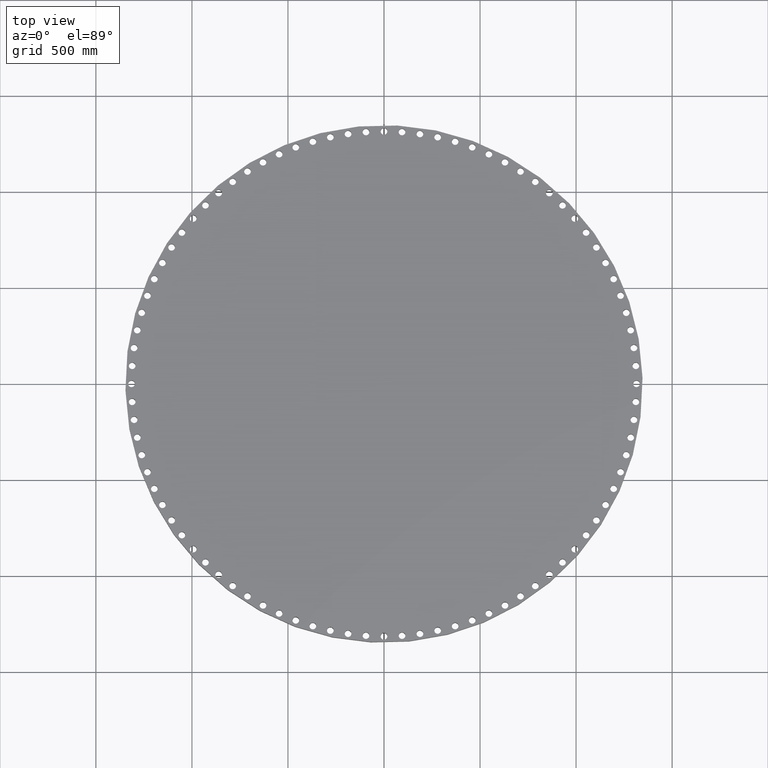
[diagram: clean part render]
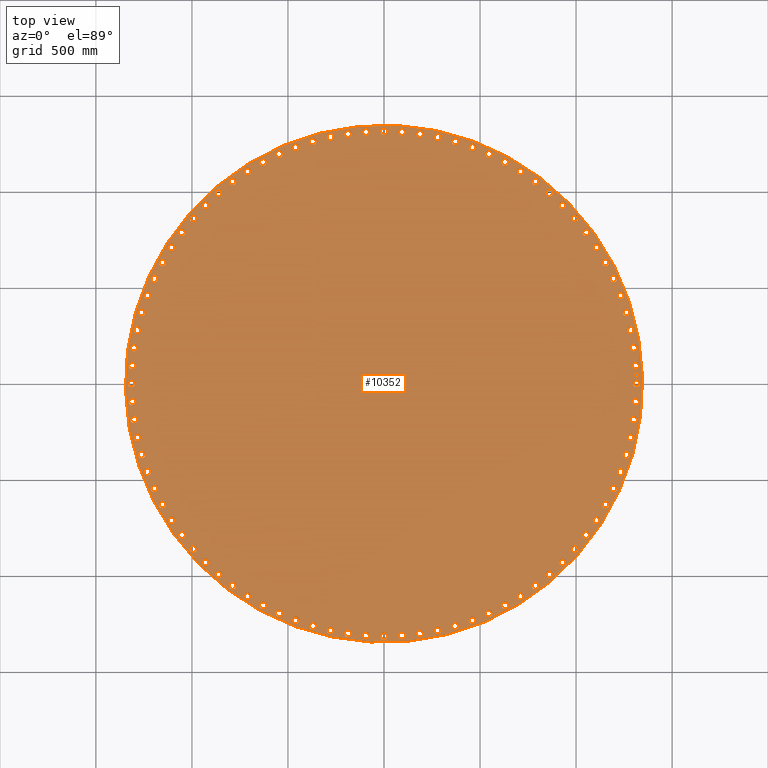
[diagram: same view with one face highlighted and labeled with its STEP entity id]
A machine part, top view. The second image highlights one B-rep face of the part: STEP entity #10352.
In plain terms, the highlighted planar face has unit normal (0, 0, -1).
Its self-contained STEP definition (entity closure, byte-faithful):
#65=AXIS2_PLACEMENT_3D('Circle Axis2P3D',#63,#64,$) ;
#110=AXIS2_PLACEMENT_3D('Circle Axis2P3D',#108,#109,$) ;
#147=AXIS2_PLACEMENT_3D('Circle Axis2P3D',#145,#146,$) ;
#171=AXIS2_PLACEMENT_3D('Circle Axis2P3D',#169,#170,$) ;
#5905=AXIS2_PLACEMENT_3D('Circle Axis2P3D',#5903,#5904,$) ;
#5917=AXIS2_PLACEMENT_3D('Circle Axis2P3D',#5915,#5916,$) ;
#5952=AXIS2_PLACEMENT_3D('Circle Axis2P3D',#5950,#5951,$) ;
#5964=AXIS2_PLACEMENT_3D('Circle Axis2P3D',#5962,#5963,$) ;
#5999=AXIS2_PLACEMENT_3D('Circle Axis2P3D',#5997,#5998,$) ;
#6011=AXIS2_PLACEMENT_3D('Circle Axis2P3D',#6009,#6010,$) ;
#6046=AXIS2_PLACEMENT_3D('Circle Axis2P3D',#6044,#6045,$) ;
#6058=AXIS2_PLACEMENT_3D('Circle Axis2P3D',#6056,#6057,$) ;
#6093=AXIS2_PLACEMENT_3D('Circle Axis2P3D',#6091,#6092,$) ;
#6105=AXIS2_PLACEMENT_3D('Circle Axis2P3D',#6103,#6104,$) ;
#6140=AXIS2_PLACEMENT_3D('Circle Axis2P3D',#6138,#6139,$) ;
#6152=AXIS2_PLACEMENT_3D('Circle Axis2P3D',#6150,#6151,$) ;
#6187=AXIS2_PLACEMENT_3D('Circle Axis2P3D',#6185,#6186,$) ;
#6199=AXIS2_PLACEMENT_3D('Circle Axis2P3D',#6197,#6198,$) ;
#6234=AXIS2_PLACEMENT_3D('Circle Axis2P3D',#6232,#6233,$) ;
#6246=AXIS2_PLACEMENT_3D('Circle Axis2P3D',#6244,#6245,$) ;
#6281=AXIS2_PLACEMENT_3D('Circle Axis2P3D',#6279,#6280,$) ;
#6293=AXIS2_PLACEMENT_3D('Circle Axis2P3D',#6291,#6292,$) ;
#6328=AXIS2_PLACEMENT_3D('Circle Axis2P3D',#6326,#6327,$) ;
#6340=AXIS2_PLACEMENT_3D('Circle Axis2P3D',#6338,#6339,$) ;
#6375=AXIS2_PLACEMENT_3D('Circle Axis2P3D',#6373,#6374,$) ;
#6387=AXIS2_PLACEMENT_3D('Circle Axis2P3D',#6385,#6386,$) ;
#6422=AXIS2_PLACEMENT_3D('Circle Axis2P3D',#6420,#6421,$) ;
#6434=AXIS2_PLACEMENT_3D('Circle Axis2P3D',#6432,#6433,$) ;
#6469=AXIS2_PLACEMENT_3D('Circle Axis2P3D',#6467,#6468,$) ;
#6481=AXIS2_PLACEMENT_3D('Circle Axis2P3D',#6479,#6480,$) ;
#6516=AXIS2_PLACEMENT_3D('Circle Axis2P3D',#6514,#6515,$) ;
#6528=AXIS2_PLACEMENT_3D('Circle Axis2P3D',#6526,#6527,$) ;
#6563=AXIS2_PLACEMENT_3D('Circle Axis2P3D',#6561,#6562,$) ;
#6575=AXIS2_PLACEMENT_3D('Circle Axis2P3D',#6573,#6574,$) ;
#6610=AXIS2_PLACEMENT_3D('Circle Axis2P3D',#6608,#6609,$) ;
#6622=AXIS2_PLACEMENT_3D('Circle Axis2P3D',#6620,#6621,$) ;
#6657=AXIS2_PLACEMENT_3D('Circle Axis2P3D',#6655,#6656,$) ;
#6669=AXIS2_PLACEMENT_3D('Circle Axis2P3D',#6667,#6668,$) ;
#6704=AXIS2_PLACEMENT_3D('Circle Axis2P3D',#6702,#6703,$) ;
#6716=AXIS2_PLACEMENT_3D('Circle Axis2P3D',#6714,#6715,$) ;
#6751=AXIS2_PLACEMENT_3D('Circle Axis2P3D',#6749,#6750,$) ;
#6763=AXIS2_PLACEMENT_3D('Circle Axis2P3D',#6761,#6762,$) ;
#6798=AXIS2_PLACEMENT_3D('Circle Axis2P3D',#6796,#6797,$) ;
#6810=AXIS2_PLACEMENT_3D('Circle Axis2P3D',#6808,#6809,$) ;
#6845=AXIS2_PLACEMENT_3D('Circle Axis2P3D',#6843,#6844,$) ;
#6857=AXIS2_PLACEMENT_3D('Circle Axis2P3D',#6855,#6856,$) ;
#6892=AXIS2_PLACEMENT_3D('Circle Axis2P3D',#6890,#6891,$) ;
#6904=AXIS2_PLACEMENT_3D('Circle Axis2P3D',#6902,#6903,$) ;
#6939=AXIS2_PLACEMENT_3D('Circle Axis2P3D',#6937,#6938,$) ;
#6951=AXIS2_PLACEMENT_3D('Circle Axis2P3D',#6949,#6950,$) ;
#6986=AXIS2_PLACEMENT_3D('Circle Axis2P3D',#6984,#6985,$) ;
#6998=AXIS2_PLACEMENT_3D('Circle Axis2P3D',#6996,#6997,$) ;
#7033=AXIS2_PLACEMENT_3D('Circle Axis2P3D',#7031,#7032,$) ;
#7045=AXIS2_PLACEMENT_3D('Circle Axis2P3D',#7043,#7044,$) ;
#7080=AXIS2_PLACEMENT_3D('Circle Axis2P3D',#7078,#7079,$) ;
#7092=AXIS2_PLACEMENT_3D('Circle Axis2P3D',#7090,#7091,$) ;
#7127=AXIS2_PLACEMENT_3D('Circle Axis2P3D',#7125,#7126,$) ;
#7139=AXIS2_PLACEMENT_3D('Circle Axis2P3D',#7137,#7138,$) ;
#7174=AXIS2_PLACEMENT_3D('Circle Axis2P3D',#7172,#7173,$) ;
#7186=AXIS2_PLACEMENT_3D('Circle Axis2P3D',#7184,#7185,$) ;
#7221=AXIS2_PLACEMENT_3D('Circle Axis2P3D',#7219,#7220,$) ;
#7233=AXIS2_PLACEMENT_3D('Circle Axis2P3D',#7231,#7232,$) ;
#7268=AXIS2_PLACEMENT_3D('Circle Axis2P3D',#7266,#7267,$) ;
#7280=AXIS2_PLACEMENT_3D('Circle Axis2P3D',#7278,#7279,$) ;
#7315=AXIS2_PLACEMENT_3D('Circle Axis2P3D',#7313,#7314,$) ;
#7327=AXIS2_PLACEMENT_3D('Circle Axis2P3D',#7325,#7326,$) ;
#7362=AXIS2_PLACEMENT_3D('Circle Axis2P3D',#7360,#7361,$) ;
#7374=AXIS2_PLACEMENT_3D('Circle Axis2P3D',#7372,#7373,$) ;
#7409=AXIS2_PLACEMENT_3D('Circle Axis2P3D',#7407,#7408,$) ;
#7421=AXIS2_PLACEMENT_3D('Circle Axis2P3D',#7419,#7420,$) ;
#7456=AXIS2_PLACEMENT_3D('Circle Axis2P3D',#7454,#7455,$) ;
#7468=AXIS2_PLACEMENT_3D('Circle Axis2P3D',#7466,#7467,$) ;
#7503=AXIS2_PLACEMENT_3D('Circle Axis2P3D',#7501,#7502,$) ;
#7515=AXIS2_PLACEMENT_3D('Circle Axis2P3D',#7513,#7514,$) ;
#7550=AXIS2_PLACEMENT_3D('Circle Axis2P3D',#7548,#7549,$) ;
#7562=AXIS2_PLACEMENT_3D('Circle Axis2P3D',#7560,#7561,$) ;
#7597=AXIS2_PLACEMENT_3D('Circle Axis2P3D',#7595,#7596,$) ;
#7609=AXIS2_PLACEMENT_3D('Circle Axis2P3D',#7607,#7608,$) ;
#7644=AXIS2_PLACEMENT_3D('Circle Axis2P3D',#7642,#7643,$) ;
#7656=AXIS2_PLACEMENT_3D('Circle Axis2P3D',#7654,#7655,$) ;
#7691=AXIS2_PLACEMENT_3D('Circle Axis2P3D',#7689,#7690,$) ;
#7703=AXIS2_PLACEMENT_3D('Circle Axis2P3D',#7701,#7702,$) ;
#7738=AXIS2_PLACEMENT_3D('Circle Axis2P3D',#7736,#7737,$) ;
#7750=AXIS2_PLACEMENT_3D('Circle Axis2P3D',#7748,#7749,$) ;
#7785=AXIS2_PLACEMENT_3D('Circle Axis2P3D',#7783,#7784,$) ;
#7797=AXIS2_PLACEMENT_3D('Circle Axis2P3D',#7795,#7796,$) ;
#7832=AXIS2_PLACEMENT_3D('Circle Axis2P3D',#7830,#7831,$) ;
#7844=AXIS2_PLACEMENT_3D('Circle Axis2P3D',#7842,#7843,$) ;
#7879=AXIS2_PLACEMENT_3D('Circle Axis2P3D',#7877,#7878,$) ;
#7891=AXIS2_PLACEMENT_3D('Circle Axis2P3D',#7889,#7890,$) ;
#7926=AXIS2_PLACEMENT_3D('Circle Axis2P3D',#7924,#7925,$) ;
#7938=AXIS2_PLACEMENT_3D('Circle Axis2P3D',#7936,#7937,$) ;
#7973=AXIS2_PLACEMENT_3D('Circle Axis2P3D',#7971,#7972,$) ;
#7985=AXIS2_PLACEMENT_3D('Circle Axis2P3D',#7983,#7984,$) ;
#8020=AXIS2_PLACEMENT_3D('Circle Axis2P3D',#8018,#8019,$) ;
#8032=AXIS2_PLACEMENT_3D('Circle Axis2P3D',#8030,#8031,$) ;
#8067=AXIS2_PLACEMENT_3D('Circle Axis2P3D',#8065,#8066,$) ;
#8079=AXIS2_PLACEMENT_3D('Circle Axis2P3D',#8077,#8078,$) ;
#8114=AXIS2_PLACEMENT_3D('Circle Axis2P3D',#8112,#8113,$) ;
#8126=AXIS2_PLACEMENT_3D('Circle Axis2P3D',#8124,#8125,$) ;
#8161=AXIS2_PLACEMENT_3D('Circle Axis2P3D',#8159,#8160,$) ;
#8173=AXIS2_PLACEMENT_3D('Circle Axis2P3D',#8171,#8172,$) ;
#8208=AXIS2_PLACEMENT_3D('Circle Axis2P3D',#8206,#8207,$) ;
#8220=AXIS2_PLACEMENT_3D('Circle Axis2P3D',#8218,#8219,$) ;
#8255=AXIS2_PLACEMENT_3D('Circle Axis2P3D',#8253,#8254,$) ;
#8267=AXIS2_PLACEMENT_3D('Circle Axis2P3D',#8265,#8266,$) ;
#8302=AXIS2_PLACEMENT_3D('Circle Axis2P3D',#8300,#8301,$) ;
#8314=AXIS2_PLACEMENT_3D('Circle Axis2P3D',#8312,#8313,$) ;
#8349=AXIS2_PLACEMENT_3D('Circle Axis2P3D',#8347,#8348,$) ;
#8361=AXIS2_PLACEMENT_3D('Circle Axis2P3D',#8359,#8360,$) ;
#8396=AXIS2_PLACEMENT_3D('Circle Axis2P3D',#8394,#8395,$) ;
#8408=AXIS2_PLACEMENT_3D('Circle Axis2P3D',#8406,#8407,$) ;
#8443=AXIS2_PLACEMENT_3D('Circle Axis2P3D',#8441,#8442,$) ;
#8455=AXIS2_PLACEMENT_3D('Circle Axis2P3D',#8453,#8454,$) ;
#8490=AXIS2_PLACEMENT_3D('Circle Axis2P3D',#8488,#8489,$) ;
#8502=AXIS2_PLACEMENT_3D('Circle Axis2P3D',#8500,#8501,$) ;
#8537=AXIS2_PLACEMENT_3D('Circle Axis2P3D',#8535,#8536,$) ;
#8549=AXIS2_PLACEMENT_3D('Circle Axis2P3D',#8547,#8548,$) ;
#8584=AXIS2_PLACEMENT_3D('Circle Axis2P3D',#8582,#8583,$) ;
#8596=AXIS2_PLACEMENT_3D('Circle Axis2P3D',#8594,#8595,$) ;
#8631=AXIS2_PLACEMENT_3D('Circle Axis2P3D',#8629,#8630,$) ;
#8643=AXIS2_PLACEMENT_3D('Circle Axis2P3D',#8641,#8642,$) ;
#8678=AXIS2_PLACEMENT_3D('Circle Axis2P3D',#8676,#8677,$) ;
#8690=AXIS2_PLACEMENT_3D('Circle Axis2P3D',#8688,#8689,$) ;
#8725=AXIS2_PLACEMENT_3D('Circle Axis2P3D',#8723,#8724,$) ;
#8737=AXIS2_PLACEMENT_3D('Circle Axis2P3D',#8735,#8736,$) ;
#8772=AXIS2_PLACEMENT_3D('Circle Axis2P3D',#8770,#8771,$) ;
#8784=AXIS2_PLACEMENT_3D('Circle Axis2P3D',#8782,#8783,$) ;
#8819=AXIS2_PLACEMENT_3D('Circle Axis2P3D',#8817,#8818,$) ;
#8831=AXIS2_PLACEMENT_3D('Circle Axis2P3D',#8829,#8830,$) ;
#8866=AXIS2_PLACEMENT_3D('Circle Axis2P3D',#8864,#8865,$) ;
#8878=AXIS2_PLACEMENT_3D('Circle Axis2P3D',#8876,#8877,$) ;
#8913=AXIS2_PLACEMENT_3D('Circle Axis2P3D',#8911,#8912,$) ;
#8925=AXIS2_PLACEMENT_3D('Circle Axis2P3D',#8923,#8924,$) ;
#8960=AXIS2_PLACEMENT_3D('Circle Axis2P3D',#8958,#8959,$) ;
#8972=AXIS2_PLACEMENT_3D('Circle Axis2P3D',#8970,#8971,$) ;
#9007=AXIS2_PLACEMENT_3D('Circle Axis2P3D',#9005,#9006,$) ;
#9019=AXIS2_PLACEMENT_3D('Circle Axis2P3D',#9017,#9018,$) ;
#9054=AXIS2_PLACEMENT_3D('Circle Axis2P3D',#9052,#9053,$) ;
#9066=AXIS2_PLACEMENT_3D('Circle Axis2P3D',#9064,#9065,$) ;
#9101=AXIS2_PLACEMENT_3D('Circle Axis2P3D',#9099,#9100,$) ;
#9113=AXIS2_PLACEMENT_3D('Circle Axis2P3D',#9111,#9112,$) ;
#9148=AXIS2_PLACEMENT_3D('Circle Axis2P3D',#9146,#9147,$) ;
#9160=AXIS2_PLACEMENT_3D('Circle Axis2P3D',#9158,#9159,$) ;
#9195=AXIS2_PLACEMENT_3D('Circle Axis2P3D',#9193,#9194,$) ;
#9207=AXIS2_PLACEMENT_3D('Circle Axis2P3D',#9205,#9206,$) ;
#9242=AXIS2_PLACEMENT_3D('Circle Axis2P3D',#9240,#9241,$) ;
#9254=AXIS2_PLACEMENT_3D('Circle Axis2P3D',#9252,#9253,$) ;
#9289=AXIS2_PLACEMENT_3D('Circle Axis2P3D',#9287,#9288,$) ;
#9301=AXIS2_PLACEMENT_3D('Circle Axis2P3D',#9299,#9300,$) ;
#9336=AXIS2_PLACEMENT_3D('Circle Axis2P3D',#9334,#9335,$) ;
#9348=AXIS2_PLACEMENT_3D('Circle Axis2P3D',#9346,#9347,$) ;
#9383=AXIS2_PLACEMENT_3D('Circle Axis2P3D',#9381,#9382,$) ;
#9395=AXIS2_PLACEMENT_3D('Circle Axis2P3D',#9393,#9394,$) ;
#9430=AXIS2_PLACEMENT_3D('Circle Axis2P3D',#9428,#9429,$) ;
#9442=AXIS2_PLACEMENT_3D('Circle Axis2P3D',#9440,#9441,$) ;
#9477=AXIS2_PLACEMENT_3D('Circle Axis2P3D',#9475,#9476,$) ;
#9489=AXIS2_PLACEMENT_3D('Circle Axis2P3D',#9487,#9488,$) ;
#9524=AXIS2_PLACEMENT_3D('Circle Axis2P3D',#9522,#9523,$) ;
#9536=AXIS2_PLACEMENT_3D('Circle Axis2P3D',#9534,#9535,$) ;
#9571=AXIS2_PLACEMENT_3D('Circle Axis2P3D',#9569,#9570,$) ;
#9583=AXIS2_PLACEMENT_3D('Circle Axis2P3D',#9581,#9582,$) ;
#9618=AXIS2_PLACEMENT_3D('Circle Axis2P3D',#9616,#9617,$) ;
#9630=AXIS2_PLACEMENT_3D('Circle Axis2P3D',#9628,#9629,$) ;
#9665=AXIS2_PLACEMENT_3D('Circle Axis2P3D',#9663,#9664,$) ;
#9677=AXIS2_PLACEMENT_3D('Circle Axis2P3D',#9675,#9676,$) ;
#9712=AXIS2_PLACEMENT_3D('Circle Axis2P3D',#9710,#9711,$) ;
#9724=AXIS2_PLACEMENT_3D('Circle Axis2P3D',#9722,#9723,$) ;
#9759=AXIS2_PLACEMENT_3D('Circle Axis2P3D',#9757,#9758,$) ;
#9771=AXIS2_PLACEMENT_3D('Circle Axis2P3D',#9769,#9770,$) ;
#9806=AXIS2_PLACEMENT_3D('Circle Axis2P3D',#9804,#9805,$) ;
#9818=AXIS2_PLACEMENT_3D('Circle Axis2P3D',#9816,#9817,$) ;
#9853=AXIS2_PLACEMENT_3D('Circle Axis2P3D',#9851,#9852,$) ;
#9865=AXIS2_PLACEMENT_3D('Circle Axis2P3D',#9863,#9864,$) ;
#9900=AXIS2_PLACEMENT_3D('Circle Axis2P3D',#9898,#9899,$) ;
#9912=AXIS2_PLACEMENT_3D('Circle Axis2P3D',#9910,#9911,$) ;
#9947=AXIS2_PLACEMENT_3D('Circle Axis2P3D',#9945,#9946,$) ;
#9959=AXIS2_PLACEMENT_3D('Circle Axis2P3D',#9957,#9958,$) ;
#9976=AXIS2_PLACEMENT_3D('Plane Axis2P3D',#9973,#9974,#9975) ;
#10336=AXIS2_PLACEMENT_3D('Circle Axis2P3D',#10334,#10335,$) ;
#10345=AXIS2_PLACEMENT_3D('Circle Axis2P3D',#10343,#10344,$) ;
#46=CARTESIAN_POINT('Vertex',(51.1444680325,0.330803621638,6.12000000002)) ;
#60=CARTESIAN_POINT('Vertex',(52.3555319679,-0.330803621638,6.12000000002)) ;
#63=CARTESIAN_POINT('Axis2P3D Location',(51.7500000002,0.,6.12000000002)) ;
#108=CARTESIAN_POINT('Axis2P3D Location',(51.7500000002,0.,6.12000000002)) ;
#142=CARTESIAN_POINT('Vertex',(-25.4095535461,-46.5118757804,6.12000000002)) ;
#145=CARTESIAN_POINT('Axis2P3D Location',(0.,0.,6.12000000002)) ;
#149=CARTESIAN_POINT('Vertex',(25.4095535461,46.5118757804,6.12000000002)) ;
#169=CARTESIAN_POINT('Axis2P3D Location',(0.,0.,6.12000000002)) ;
#5893=CARTESIAN_POINT('Vertex',(-3.97856534652,50.9905585295,6.12000000002)) ;
#5900=CARTESIAN_POINT('Vertex',(-3.40504011463,52.2457353331,6.12000000002)) ;
#5903=CARTESIAN_POINT('Axis2P3D Location',(-3.69180273058,51.6181469313,6.12000000002)) ;
#5915=CARTESIAN_POINT('Axis2P3D Location',(-3.69180273058,51.6181469313,6.12000000002)) ;
#5940=CARTESIAN_POINT('Vertex',(-36.3985136501,35.9306866819,6.12000000002)) ;
#5947=CARTESIAN_POINT('Vertex',(-36.787038203,37.2548651712,6.12000000002)) ;
#5950=CARTESIAN_POINT('Axis2P3D Location',(-36.5927759266,36.5927759266,6.12000000002)) ;
#5962=CARTESIAN_POINT('Axis2P3D Location',(-36.5927759266,36.5927759266,6.12000000002)) ;
#5987=CARTESIAN_POINT('Vertex',(-30.9145593992,40.7450126827,6.12000000002)) ;
#5994=CARTESIAN_POINT('Vertex',(-31.1106790849,42.1110057533,6.12000000002)) ;
#5997=CARTESIAN_POINT('Axis2P3D Location',(-31.0126192421,41.428009218,6.12000000002)) ;
#6009=CARTESIAN_POINT('Axis2P3D Location',(-31.0126192421,41.428009218,6.12000000002)) ;
#6034=CARTESIAN_POINT('Vertex',(51.0377570498,-3.31864380267,6.12000000002)) ;
#6041=CARTESIAN_POINT('Vertex',(52.1985368128,-4.06496165848,6.12000000002)) ;
#6044=CARTESIAN_POINT('Axis2P3D Location',(51.6181469313,-3.69180273058,6.12000000002)) ;
#6056=CARTESIAN_POINT('Axis2P3D Location',(51.6181469313,-3.69180273058,6.12000000002)) ;
#6081=CARTESIAN_POINT('Vertex',(-46.6600652985,20.9452702943,6.12000000002)) ;
#6088=CARTESIAN_POINT('Vertex',(-47.486846221,22.0501835516,6.12000000002)) ;
#6091=CARTESIAN_POINT('Axis2P3D Location',(-47.0734557598,21.4977269229,6.12000000002)) ;
#6103=CARTESIAN_POINT('Axis2P3D Location',(-47.0734557598,21.4977269229,6.12000000002)) ;
#6128=CARTESIAN_POINT('Vertex',(50.6709693561,-6.95118017887,6.12000000002)) ;
#6135=CARTESIAN_POINT('Vertex',(51.775549879,-7.77840558247,6.12000000002)) ;
#6138=CARTESIAN_POINT('Axis2P3D Location',(51.2232596175,-7.36479288067,6.12000000002)) ;
#6150=CARTESIAN_POINT('Axis2P3D Location',(51.2232596175,-7.36479288067,6.12000000002)) ;
#6175=CARTESIAN_POINT('Vertex',(27.37249729,43.2043103575,6.12000000002)) ;
#6182=CARTESIAN_POINT('Vertex',(28.5838273168,43.8654302908,6.12000000002)) ;
#6185=CARTESIAN_POINT('Axis2P3D Location',(27.9781623034,43.5348703242,6.12000000002)) ;
#6197=CARTESIAN_POINT('Axis2P3D Location',(27.9781623034,43.5348703242,6.12000000002)) ;
#6222=CARTESIAN_POINT('Vertex',(50.0459740173,-10.5482949342,6.12000000002)) ;
#6229=CARTESIAN_POINT('Vertex',(51.0887266111,-11.4522125346,6.12000000002)) ;
#6232=CARTESIAN_POINT('Axis2P3D Location',(50.5673503142,-11.0002537344,6.12000000002)) ;
#6244=CARTESIAN_POINT('Axis2P3D Location',(50.5673503142,-11.0002537344,6.12000000002)) ;
#6269=CARTESIAN_POINT('Vertex',(-43.2043103575,27.37249729,6.12000000002)) ;
#6276=CARTESIAN_POINT('Vertex',(-43.8654302908,28.5838273168,6.12000000002)) ;
#6279=CARTESIAN_POINT('Axis2P3D Location',(-43.5348703242,27.9781623034,6.12000000002)) ;
#6291=CARTESIAN_POINT('Axis2P3D Location',(-43.5348703242,27.9781623034,6.12000000002)) ;
#6316=CARTESIAN_POINT('Vertex',(49.1659558666,-14.0916579965,6.12000000002)) ;
#6323=CARTESIAN_POINT('Vertex',(50.1415669029,-15.0676616367,6.12000000002)) ;
#6326=CARTESIAN_POINT('Axis2P3D Location',(49.6537613847,-14.5796598166,6.12000000002)) ;
#6338=CARTESIAN_POINT('Axis2P3D Location',(49.6537613847,-14.5796598166,6.12000000002)) ;
#6363=CARTESIAN_POINT('Vertex',(-51.1444680325,-0.330803621638,6.12000000002)) ;
#6370=CARTESIAN_POINT('Vertex',(-52.3555319679,0.330803621638,6.12000000002)) ;
#6373=CARTESIAN_POINT('Axis2P3D Location',(-51.7500000002,-6.33754718561E-015,6.12000000002)) ;
#6385=CARTESIAN_POINT('Axis2P3D Location',(-51.7500000002,-6.33754718561E-015,6.12000000002)) ;
#6410=CARTESIAN_POINT('Vertex',(48.0353992746,-17.5632131997,6.12000000002)) ;
#6417=CARTESIAN_POINT('Vertex',(48.9388972633,-18.606329389,6.12000000002)) ;
#6420=CARTESIAN_POINT('Axis2P3D Location',(48.4871482689,-18.0847712943,6.12000000002)) ;
#6432=CARTESIAN_POINT('Axis2P3D Location',(48.4871482689,-18.0847712943,6.12000000002)) ;
#6457=CARTESIAN_POINT('Vertex',(38.4357796437,33.7425085693,6.12000000002)) ;
#6464=CARTESIAN_POINT('Vertex',(39.7843013023,34.0355773944,6.12000000002)) ;
#6467=CARTESIAN_POINT('Axis2P3D Location',(39.110040473,33.8890429818,6.12000000002)) ;
#6479=CARTESIAN_POINT('Axis2P3D Location',(39.110040473,33.8890429818,6.12000000002)) ;
#6504=CARTESIAN_POINT('Vertex',(46.6600652985,-20.9452702943,6.12000000002)) ;
#6511=CARTESIAN_POINT('Vertex',(47.486846221,-22.0501835516,6.12000000002)) ;
#6514=CARTESIAN_POINT('Axis2P3D Location',(47.0734557598,-21.4977269229,6.12000000002)) ;
#6526=CARTESIAN_POINT('Axis2P3D Location',(47.0734557598,-21.4977269229,6.12000000002)) ;
#6551=CARTESIAN_POINT('Vertex',(46.385223717,21.5470894111,6.12000000002)) ;
#6558=CARTESIAN_POINT('Vertex',(47.7616878026,21.4483644348,6.12000000002)) ;
#6561=CARTESIAN_POINT('Axis2P3D Location',(47.0734557598,21.4977269229,6.12000000002)) ;
#6573=CARTESIAN_POINT('Axis2P3D Location',(47.0734557598,21.4977269229,6.12000000002)) ;
#6598=CARTESIAN_POINT('Vertex',(45.0469623252,-24.2205950925,6.12000000002)) ;
#6605=CARTESIAN_POINT('Vertex',(45.7928130954,-25.3816750332,6.12000000002)) ;
#6608=CARTESIAN_POINT('Axis2P3D Location',(45.4198877103,-24.8011350629,6.12000000002)) ;
#6620=CARTESIAN_POINT('Axis2P3D Location',(45.4198877103,-24.8011350629,6.12000000002)) ;
#6645=CARTESIAN_POINT('Vertex',(50.5768128282,7.60605321437,6.12000000002)) ;
#6652=CARTESIAN_POINT('Vertex',(51.8697064068,7.12353254698,6.12000000002)) ;
#6655=CARTESIAN_POINT('Axis2P3D Location',(51.2232596175,7.36479288067,6.12000000002)) ;
#6667=CARTESIAN_POINT('Axis2P3D Location',(51.2232596175,7.36479288067,6.12000000002)) ;
#6692=CARTESIAN_POINT('Vertex',(43.2043103575,-27.37249729,6.12000000002)) ;
#6699=CARTESIAN_POINT('Vertex',(43.8654302908,-28.5838273168,6.12000000002)) ;
#6702=CARTESIAN_POINT('Axis2P3D Location',(43.5348703242,-27.9781623034,6.12000000002)) ;
#6714=CARTESIAN_POINT('Axis2P3D Location',(43.5348703242,-27.9781623034,6.12000000002)) ;
#6739=CARTESIAN_POINT('Vertex',(-7.60605321437,50.5768128282,6.12000000002)) ;
#6746=CARTESIAN_POINT('Vertex',(-7.12353254698,51.8697064068,6.12000000002)) ;
#6749=CARTESIAN_POINT('Axis2P3D Location',(-7.36479288067,51.2232596175,6.12000000002)) ;
#6761=CARTESIAN_POINT('Axis2P3D Location',(-7.36479288067,51.2232596175,6.12000000002)) ;
#6786=CARTESIAN_POINT('Vertex',(41.1414991276,-30.3849155157,6.12000000002)) ;
#6793=CARTESIAN_POINT('Vertex',(41.7145193084,-31.6403229685,6.12000000002)) ;
#6796=CARTESIAN_POINT('Axis2P3D Location',(41.428009218,-31.0126192421,6.12000000002)) ;
#6808=CARTESIAN_POINT('Axis2P3D Location',(41.428009218,-31.0126192421,6.12000000002)) ;
#6833=CARTESIAN_POINT('Vertex',(24.2205950925,45.0469623252,6.12000000002)) ;
#6840=CARTESIAN_POINT('Vertex',(25.3816750332,45.7928130954,6.12000000002)) ;
#6843=CARTESIAN_POINT('Axis2P3D Location',(24.8011350629,45.4198877103,6.12000000002)) ;
#6855=CARTESIAN_POINT('Axis2P3D Location',(24.8011350629,45.4198877103,6.12000000002)) ;
#6880=CARTESIAN_POINT('Vertex',(38.8690402486,-33.2424991768,6.12000000002)) ;
#6887=CARTESIAN_POINT('Vertex',(39.3510406974,-34.5355867869,6.12000000002)) ;
#6890=CARTESIAN_POINT('Axis2P3D Location',(39.110040473,-33.8890429818,6.12000000002)) ;
#6902=CARTESIAN_POINT('Axis2P3D Location',(39.110040473,-33.8890429818,6.12000000002)) ;
#6927=CARTESIAN_POINT('Vertex',(-51.0377570498,3.31864380267,6.12000000002)) ;
#6934=CARTESIAN_POINT('Vertex',(-52.1985368128,4.06496165848,6.12000000002)) ;
#6937=CARTESIAN_POINT('Axis2P3D Location',(-51.6181469313,3.69180273058,6.12000000002)) ;
#6949=CARTESIAN_POINT('Axis2P3D Location',(-51.6181469313,3.69180273058,6.12000000002)) ;
#6974=CARTESIAN_POINT('Vertex',(36.3985136501,-35.9306866819,6.12000000002)) ;
#6981=CARTESIAN_POINT('Vertex',(36.787038203,-37.2548651712,6.12000000002)) ;
#6984=CARTESIAN_POINT('Axis2P3D Location',(36.5927759266,-36.5927759266,6.12000000002)) ;
#6996=CARTESIAN_POINT('Axis2P3D Location',(36.5927759266,-36.5927759266,6.12000000002)) ;
#7021=CARTESIAN_POINT('Vertex',(40.7450126827,30.9145593992,6.12000000002)) ;
#7028=CARTESIAN_POINT('Vertex',(42.1110057533,31.1106790849,6.12000000002)) ;
#7031=CARTESIAN_POINT('Axis2P3D Location',(41.428009218,31.0126192421,6.12000000002)) ;
#7043=CARTESIAN_POINT('Axis2P3D Location',(41.428009218,31.0126192421,6.12000000002)) ;
#7068=CARTESIAN_POINT('Vertex',(33.7425085693,-38.4357796437,6.12000000002)) ;
#7075=CARTESIAN_POINT('Vertex',(34.0355773944,-39.7843013023,6.12000000002)) ;
#7078=CARTESIAN_POINT('Axis2P3D Location',(33.8890429818,-39.110040473,6.12000000002)) ;
#7090=CARTESIAN_POINT('Axis2P3D Location',(33.8890429818,-39.110040473,6.12000000002)) ;
#7115=CARTESIAN_POINT('Vertex',(-50.9905585295,-3.97856534652,6.12000000002)) ;
#7122=CARTESIAN_POINT('Vertex',(-52.2457353331,-3.40504011463,6.12000000002)) ;
#7125=CARTESIAN_POINT('Axis2P3D Location',(-51.6181469313,-3.69180273058,6.12000000002)) ;
#7137=CARTESIAN_POINT('Axis2P3D Location',(-51.6181469313,-3.69180273058,6.12000000002)) ;
#7162=CARTESIAN_POINT('Vertex',(30.9145593992,-40.7450126827,6.12000000002)) ;
#7169=CARTESIAN_POINT('Vertex',(31.1106790849,-42.1110057533,6.12000000002)) ;
#7172=CARTESIAN_POINT('Axis2P3D Location',(31.0126192421,-41.428009218,6.12000000002)) ;
#7184=CARTESIAN_POINT('Axis2P3D Location',(31.0126192421,-41.428009218,6.12000000002)) ;
#7209=CARTESIAN_POINT('Vertex',(42.8466184767,27.9290767208,6.12000000002)) ;
#7216=CARTESIAN_POINT('Vertex',(44.2231221717,28.0272478861,6.12000000002)) ;
#7219=CARTESIAN_POINT('Axis2P3D Location',(43.5348703242,27.9781623034,6.12000000002)) ;
#7231=CARTESIAN_POINT('Axis2P3D Location',(43.5348703242,27.9781623034,6.12000000002)) ;
#7256=CARTESIAN_POINT('Vertex',(27.9290767208,-42.8466184767,6.12000000002)) ;
#7263=CARTESIAN_POINT('Vertex',(28.0272478861,-44.2231221717,6.12000000002)) ;
#7266=CARTESIAN_POINT('Axis2P3D Location',(27.9781623034,-43.5348703242,6.12000000002)) ;
#7278=CARTESIAN_POINT('Axis2P3D Location',(27.9781623034,-43.5348703242,6.12000000002)) ;
#7303=CARTESIAN_POINT('Vertex',(14.0916579965,49.1659558666,6.12000000002)) ;
#7310=CARTESIAN_POINT('Vertex',(15.0676616367,50.1415669029,6.12000000002)) ;
#7313=CARTESIAN_POINT('Axis2P3D Location',(14.5796598166,49.6537613847,6.12000000002)) ;
#7325=CARTESIAN_POINT('Axis2P3D Location',(14.5796598166,49.6537613847,6.12000000002)) ;
#7350=CARTESIAN_POINT('Vertex',(24.8012738693,-44.7298877242,6.12000000002)) ;
#7357=CARTESIAN_POINT('Vertex',(24.8009962564,-46.1098876963,6.12000000002)) ;
#7360=CARTESIAN_POINT('Axis2P3D Location',(24.8011350629,-45.4198877103,6.12000000002)) ;
#7372=CARTESIAN_POINT('Axis2P3D Location',(24.8011350629,-45.4198877103,6.12000000002)) ;
#7397=CARTESIAN_POINT('Vertex',(-18.1831059243,47.8041912421,6.12000000002)) ;
#7404=CARTESIAN_POINT('Vertex',(-17.9864366643,49.1701052958,6.12000000002)) ;
#7407=CARTESIAN_POINT('Axis2P3D Location',(-18.0847712943,48.4871482689,6.12000000002)) ;
#7419=CARTESIAN_POINT('Axis2P3D Location',(-18.0847712943,48.4871482689,6.12000000002)) ;
#7444=CARTESIAN_POINT('Vertex',(21.5470894111,-46.385223717,6.12000000002)) ;
#7451=CARTESIAN_POINT('Vertex',(21.4483644348,-47.7616878026,6.12000000002)) ;
#7454=CARTESIAN_POINT('Axis2P3D Location',(21.4977269229,-47.0734557598,6.12000000002)) ;
#7466=CARTESIAN_POINT('Axis2P3D Location',(21.4977269229,-47.0734557598,6.12000000002)) ;
#7491=CARTESIAN_POINT('Vertex',(-50.0459740173,10.5482949342,6.12000000002)) ;
#7498=CARTESIAN_POINT('Vertex',(-51.0887266111,11.4522125346,6.12000000002)) ;
#7501=CARTESIAN_POINT('Axis2P3D Location',(-50.5673503142,11.0002537344,6.12000000002)) ;
#7513=CARTESIAN_POINT('Axis2P3D Location',(-50.5673503142,11.0002537344,6.12000000002)) ;
#7538=CARTESIAN_POINT('Vertex',(18.1831059243,-47.8041912421,6.12000000002)) ;
#7545=CARTESIAN_POINT('Vertex',(17.9864366643,-49.1701052958,6.12000000002)) ;
#7548=CARTESIAN_POINT('Axis2P3D Location',(18.0847712943,-48.4871482689,6.12000000002)) ;
#7560=CARTESIAN_POINT('Axis2P3D Location',(18.0847712943,-48.4871482689,6.12000000002)) ;
#7585=CARTESIAN_POINT('Vertex',(44.7298877242,24.8012738693,6.12000000002)) ;
#7592=CARTESIAN_POINT('Vertex',(46.1098876963,24.8009962564,6.12000000002)) ;
#7595=CARTESIAN_POINT('Axis2P3D Location',(45.4198877103,24.8011350629,6.12000000002)) ;
#7607=CARTESIAN_POINT('Axis2P3D Location',(45.4198877103,24.8011350629,6.12000000002)) ;
#7632=CARTESIAN_POINT('Vertex',(14.7264654977,-48.9795595663,6.12000000002)) ;
#7639=CARTESIAN_POINT('Vertex',(14.4328541355,-50.3279632032,6.12000000002)) ;
#7642=CARTESIAN_POINT('Axis2P3D Location',(14.5796598166,-49.6537613847,6.12000000002)) ;
#7654=CARTESIAN_POINT('Axis2P3D Location',(14.5796598166,-49.6537613847,6.12000000002)) ;
#7679=CARTESIAN_POINT('Vertex',(10.5482949342,50.0459740173,6.12000000002)) ;
#7686=CARTESIAN_POINT('Vertex',(11.4522125346,51.0887266111,6.12000000002)) ;
#7689=CARTESIAN_POINT('Axis2P3D Location',(11.0002537344,50.5673503142,6.12000000002)) ;
#7701=CARTESIAN_POINT('Axis2P3D Location',(11.0002537344,50.5673503142,6.12000000002)) ;
#7726=CARTESIAN_POINT('Vertex',(11.1947823785,-49.9053392821,6.12000000002)) ;
#7733=CARTESIAN_POINT('Vertex',(10.8057250903,-51.2293613463,6.12000000002)) ;
#7736=CARTESIAN_POINT('Axis2P3D Location',(11.0002537344,-50.5673503142,6.12000000002)) ;
#7748=CARTESIAN_POINT('Axis2P3D Location',(11.0002537344,-50.5673503142,6.12000000002)) ;
#7773=CARTESIAN_POINT('Vertex',(-41.1414991276,30.3849155157,6.12000000002)) ;
#7780=CARTESIAN_POINT('Vertex',(-41.7145193084,31.6403229685,6.12000000002)) ;
#7783=CARTESIAN_POINT('Axis2P3D Location',(-41.428009218,31.0126192421,6.12000000002)) ;
#7795=CARTESIAN_POINT('Axis2P3D Location',(-41.428009218,31.0126192421,6.12000000002)) ;
#7820=CARTESIAN_POINT('Vertex',(7.60605321437,-50.5768128282,6.12000000002)) ;
#7827=CARTESIAN_POINT('Vertex',(7.12353254698,-51.8697064068,6.12000000002)) ;
#7830=CARTESIAN_POINT('Axis2P3D Location',(7.36479288067,-51.2232596175,6.12000000002)) ;
#7842=CARTESIAN_POINT('Axis2P3D Location',(7.36479288067,-51.2232596175,6.12000000002)) ;
#7867=CARTESIAN_POINT('Vertex',(-21.5470894111,46.385223717,6.12000000002)) ;
#7874=CARTESIAN_POINT('Vertex',(-21.4483644348,47.7616878026,6.12000000002)) ;
#7877=CARTESIAN_POINT('Axis2P3D Location',(-21.4977269229,47.0734557598,6.12000000002)) ;
#7889=CARTESIAN_POINT('Axis2P3D Location',(-21.4977269229,47.0734557598,6.12000000002)) ;
#7914=CARTESIAN_POINT('Vertex',(3.97856534652,-50.9905585295,6.12000000002)) ;
#7921=CARTESIAN_POINT('Vertex',(3.40504011463,-52.2457353331,6.12000000002)) ;
#7924=CARTESIAN_POINT('Axis2P3D Location',(3.69180273058,-51.6181469313,6.12000000002)) ;
#7936=CARTESIAN_POINT('Axis2P3D Location',(3.69180273058,-51.6181469313,6.12000000002)) ;
#7961=CARTESIAN_POINT('Vertex',(50.9905585295,3.97856534652,6.12000000002)) ;
#7968=CARTESIAN_POINT('Vertex',(52.2457353331,3.40504011463,6.12000000002)) ;
#7971=CARTESIAN_POINT('Axis2P3D Location',(51.6181469313,3.69180273058,6.12000000002)) ;
#7983=CARTESIAN_POINT('Axis2P3D Location',(51.6181469313,3.69180273058,6.12000000002)) ;
#8008=CARTESIAN_POINT('Vertex',(0.330803621638,-51.1444680325,6.12000000002)) ;
#8015=CARTESIAN_POINT('Vertex',(-0.330803621638,-52.3555319679,6.12000000002)) ;
#8018=CARTESIAN_POINT('Axis2P3D Location',(-5.78294591283E-015,-51.7500000002,6.12000000002)) ;
#8030=CARTESIAN_POINT('Axis2P3D Location',(-5.78294591283E-015,-51.7500000002,6.12000000002)) ;
#8055=CARTESIAN_POINT('Vertex',(3.31864380267,51.0377570498,6.12000000002)) ;
#8062=CARTESIAN_POINT('Vertex',(4.06496165848,52.1985368128,6.12000000002)) ;
#8065=CARTESIAN_POINT('Axis2P3D Location',(3.69180273058,51.6181469313,6.12000000002)) ;
#8077=CARTESIAN_POINT('Axis2P3D Location',(3.69180273058,51.6181469313,6.12000000002)) ;
#8102=CARTESIAN_POINT('Vertex',(-3.31864380267,-51.0377570498,6.12000000002)) ;
#8109=CARTESIAN_POINT('Vertex',(-4.06496165848,-52.1985368128,6.12000000002)) ;
#8112=CARTESIAN_POINT('Axis2P3D Location',(-3.69180273058,-51.6181469313,6.12000000002)) ;
#8124=CARTESIAN_POINT('Axis2P3D Location',(-3.69180273058,-51.6181469313,6.12000000002)) ;
#8149=CARTESIAN_POINT('Vertex',(-24.8012738693,44.7298877242,6.12000000002)) ;
#8156=CARTESIAN_POINT('Vertex',(-24.8009962564,46.1098876963,6.12000000002)) ;
#8159=CARTESIAN_POINT('Axis2P3D Location',(-24.8011350629,45.4198877103,6.12000000002)) ;
#8171=CARTESIAN_POINT('Axis2P3D Location',(-24.8011350629,45.4198877103,6.12000000002)) ;
#8196=CARTESIAN_POINT('Vertex',(-6.95118017887,-50.6709693561,6.12000000002)) ;
#8203=CARTESIAN_POINT('Vertex',(-7.77840558247,-51.775549879,6.12000000002)) ;
#8206=CARTESIAN_POINT('Axis2P3D Location',(-7.36479288067,-51.2232596175,6.12000000002)) ;
#8218=CARTESIAN_POINT('Axis2P3D Location',(-7.36479288067,-51.2232596175,6.12000000002)) ;
#8243=CARTESIAN_POINT('Vertex',(6.95118017887,50.6709693561,6.12000000002)) ;
#8250=CARTESIAN_POINT('Vertex',(7.77840558247,51.775549879,6.12000000002)) ;
#8253=CARTESIAN_POINT('Axis2P3D Location',(7.36479288067,51.2232596175,6.12000000002)) ;
#8265=CARTESIAN_POINT('Axis2P3D Location',(7.36479288067,51.2232596175,6.12000000002)) ;
#8290=CARTESIAN_POINT('Vertex',(-10.5482949342,-50.0459740173,6.12000000002)) ;
#8297=CARTESIAN_POINT('Vertex',(-11.4522125346,-51.0887266111,6.12000000002)) ;
#8300=CARTESIAN_POINT('Axis2P3D Location',(-11.0002537344,-50.5673503142,6.12000000002)) ;
#8312=CARTESIAN_POINT('Axis2P3D Location',(-11.0002537344,-50.5673503142,6.12000000002)) ;
#8337=CARTESIAN_POINT('Vertex',(17.5632131997,48.0353992746,6.12000000002)) ;
#8344=CARTESIAN_POINT('Vertex',(18.606329389,48.9388972633,6.12000000002)) ;
#8347=CARTESIAN_POINT('Axis2P3D Location',(18.0847712943,48.4871482689,6.12000000002)) ;
#8359=CARTESIAN_POINT('Axis2P3D Location',(18.0847712943,48.4871482689,6.12000000002)) ;
#8384=CARTESIAN_POINT('Vertex',(-14.0916579965,-49.1659558666,6.12000000002)) ;
#8391=CARTESIAN_POINT('Vertex',(-15.0676616367,-50.1415669029,6.12000000002)) ;
#8394=CARTESIAN_POINT('Axis2P3D Location',(-14.5796598166,-49.6537613847,6.12000000002)) ;
#8406=CARTESIAN_POINT('Axis2P3D Location',(-14.5796598166,-49.6537613847,6.12000000002)) ;
#8431=CARTESIAN_POINT('Vertex',(-11.1947823785,49.9053392821,6.12000000002)) ;
#8438=CARTESIAN_POINT('Vertex',(-10.8057250903,51.2293613463,6.12000000002)) ;
#8441=CARTESIAN_POINT('Axis2P3D Location',(-11.0002537344,50.5673503142,6.12000000002)) ;
#8453=CARTESIAN_POINT('Axis2P3D Location',(-11.0002537344,50.5673503142,6.12000000002)) ;
#8478=CARTESIAN_POINT('Vertex',(-17.5632131997,-48.0353992746,6.12000000002)) ;
#8485=CARTESIAN_POINT('Vertex',(-18.606329389,-48.9388972633,6.12000000002)) ;
#8488=CARTESIAN_POINT('Axis2P3D Location',(-18.0847712943,-48.4871482689,6.12000000002)) ;
#8500=CARTESIAN_POINT('Axis2P3D Location',(-18.0847712943,-48.4871482689,6.12000000002)) ;
#8525=CARTESIAN_POINT('Vertex',(-48.0353992746,17.5632131997,6.12000000002)) ;
#8532=CARTESIAN_POINT('Vertex',(-48.9388972633,18.606329389,6.12000000002)) ;
#8535=CARTESIAN_POINT('Axis2P3D Location',(-48.4871482689,18.0847712943,6.12000000002)) ;
#8547=CARTESIAN_POINT('Axis2P3D Location',(-48.4871482689,18.0847712943,6.12000000002)) ;
#8572=CARTESIAN_POINT('Vertex',(-20.9452702943,-46.6600652985,6.12000000002)) ;
#8579=CARTESIAN_POINT('Vertex',(-22.0501835516,-47.486846221,6.12000000002)) ;
#8582=CARTESIAN_POINT('Axis2P3D Location',(-21.4977269229,-47.0734557598,6.12000000002)) ;
#8594=CARTESIAN_POINT('Axis2P3D Location',(-21.4977269229,-47.0734557598,6.12000000002)) ;
#8619=CARTESIAN_POINT('Vertex',(49.9053392821,11.1947823785,6.12000000002)) ;
#8626=CARTESIAN_POINT('Vertex',(51.2293613463,10.8057250903,6.12000000002)) ;
#8629=CARTESIAN_POINT('Axis2P3D Location',(50.5673503142,11.0002537344,6.12000000002)) ;
#8641=CARTESIAN_POINT('Axis2P3D Location',(50.5673503142,11.0002537344,6.12000000002)) ;
#8666=CARTESIAN_POINT('Vertex',(-24.2205950925,-45.0469623252,6.12000000002)) ;
#8673=CARTESIAN_POINT('Vertex',(-25.3816750332,-45.7928130954,6.12000000002)) ;
#8676=CARTESIAN_POINT('Axis2P3D Location',(-24.8011350629,-45.4198877103,6.12000000002)) ;
#8688=CARTESIAN_POINT('Axis2P3D Location',(-24.8011350629,-45.4198877103,6.12000000002)) ;
#8713=CARTESIAN_POINT('Vertex',(-27.9290767208,42.8466184767,6.12000000002)) ;
#8720=CARTESIAN_POINT('Vertex',(-28.0272478861,44.2231221717,6.12000000002)) ;
#8723=CARTESIAN_POINT('Axis2P3D Location',(-27.9781623034,43.5348703242,6.12000000002)) ;
#8735=CARTESIAN_POINT('Axis2P3D Location',(-27.9781623034,43.5348703242,6.12000000002)) ;
#8760=CARTESIAN_POINT('Vertex',(-27.37249729,-43.2043103575,6.12000000002)) ;
#8767=CARTESIAN_POINT('Vertex',(-28.5838273168,-43.8654302908,6.12000000002)) ;
#8770=CARTESIAN_POINT('Axis2P3D Location',(-27.9781623034,-43.5348703242,6.12000000002)) ;
#8782=CARTESIAN_POINT('Axis2P3D Location',(-27.9781623034,-43.5348703242,6.12000000002)) ;
#8807=CARTESIAN_POINT('Vertex',(-38.8690402486,33.2424991768,6.12000000002)) ;
#8814=CARTESIAN_POINT('Vertex',(-39.3510406974,34.5355867869,6.12000000002)) ;
#8817=CARTESIAN_POINT('Axis2P3D Location',(-39.110040473,33.8890429818,6.12000000002)) ;
#8829=CARTESIAN_POINT('Axis2P3D Location',(-39.110040473,33.8890429818,6.12000000002)) ;
#8854=CARTESIAN_POINT('Vertex',(-30.3849155157,-41.1414991276,6.12000000002)) ;
#8861=CARTESIAN_POINT('Vertex',(-31.6403229685,-41.7145193084,6.12000000002)) ;
#8864=CARTESIAN_POINT('Axis2P3D Location',(-31.0126192421,-41.428009218,6.12000000002)) ;
#8876=CARTESIAN_POINT('Axis2P3D Location',(-31.0126192421,-41.428009218,6.12000000002)) ;
#8901=CARTESIAN_POINT('Vertex',(33.2424991768,38.8690402486,6.12000000002)) ;
#8908=CARTESIAN_POINT('Vertex',(34.5355867869,39.3510406974,6.12000000002)) ;
#8911=CARTESIAN_POINT('Axis2P3D Location',(33.8890429818,39.110040473,6.12000000002)) ;
#8923=CARTESIAN_POINT('Axis2P3D Location',(33.8890429818,39.110040473,6.12000000002)) ;
#8948=CARTESIAN_POINT('Vertex',(-33.2424991768,-38.8690402486,6.12000000002)) ;
#8955=CARTESIAN_POINT('Vertex',(-34.5355867869,-39.3510406974,6.12000000002)) ;
#8958=CARTESIAN_POINT('Axis2P3D Location',(-33.8890429818,-39.110040473,6.12000000002)) ;
#8970=CARTESIAN_POINT('Axis2P3D Location',(-33.8890429818,-39.110040473,6.12000000002)) ;
#8995=CARTESIAN_POINT('Vertex',(30.3849155157,41.1414991276,6.12000000002)) ;
#9002=CARTESIAN_POINT('Vertex',(31.6403229685,41.7145193084,6.12000000002)) ;
#9005=CARTESIAN_POINT('Axis2P3D Location',(31.0126192421,41.428009218,6.12000000002)) ;
#9017=CARTESIAN_POINT('Axis2P3D Location',(31.0126192421,41.428009218,6.12000000002)) ;
#9042=CARTESIAN_POINT('Vertex',(-35.9306866819,-36.3985136501,6.12000000002)) ;
#9049=CARTESIAN_POINT('Vertex',(-37.2548651712,-36.787038203,6.12000000002)) ;
#9052=CARTESIAN_POINT('Axis2P3D Location',(-36.5927759266,-36.5927759266,6.12000000002)) ;
#9064=CARTESIAN_POINT('Axis2P3D Location',(-36.5927759266,-36.5927759266,6.12000000002)) ;
#9089=CARTESIAN_POINT('Vertex',(48.9795595663,14.7264654977,6.12000000002)) ;
#9096=CARTESIAN_POINT('Vertex',(50.3279632032,14.4328541355,6.12000000002)) ;
#9099=CARTESIAN_POINT('Axis2P3D Location',(49.6537613847,14.5796598166,6.12000000002)) ;
#9111=CARTESIAN_POINT('Axis2P3D Location',(49.6537613847,14.5796598166,6.12000000002)) ;
#9136=CARTESIAN_POINT('Vertex',(-38.4357796437,-33.7425085693,6.12000000002)) ;
#9143=CARTESIAN_POINT('Vertex',(-39.7843013023,-34.0355773944,6.12000000002)) ;
#9146=CARTESIAN_POINT('Axis2P3D Location',(-39.110040473,-33.8890429818,6.12000000002)) ;
#9158=CARTESIAN_POINT('Axis2P3D Location',(-39.110040473,-33.8890429818,6.12000000002)) ;
#9183=CARTESIAN_POINT('Vertex',(-0.330803621638,51.1444680325,6.12000000002)) ;
#9190=CARTESIAN_POINT('Vertex',(0.330803621638,52.3555319679,6.12000000002)) ;
#9193=CARTESIAN_POINT('Axis2P3D Location',(-9.50632077842E-015,51.7500000002,6.12000000002)) ;
#9205=CARTESIAN_POINT('Axis2P3D Location',(-9.50632077842E-015,51.7500000002,6.12000000002)) ;
#9230=CARTESIAN_POINT('Vertex',(-40.7450126827,-30.9145593992,6.12000000002)) ;
#9237=CARTESIAN_POINT('Vertex',(-42.1110057533,-31.1106790849,6.12000000002)) ;
#9240=CARTESIAN_POINT('Axis2P3D Location',(-41.428009218,-31.0126192421,6.12000000002)) ;
#9252=CARTESIAN_POINT('Axis2P3D Location',(-41.428009218,-31.0126192421,6.12000000002)) ;
#9277=CARTESIAN_POINT('Vertex',(-33.7425085693,38.4357796437,6.12000000002)) ;
#9284=CARTESIAN_POINT('Vertex',(-34.0355773944,39.7843013023,6.12000000002)) ;
#9287=CARTESIAN_POINT('Axis2P3D Location',(-33.8890429818,39.110040473,6.12000000002)) ;
#9299=CARTESIAN_POINT('Axis2P3D Location',(-33.8890429818,39.110040473,6.12000000002)) ;
#9324=CARTESIAN_POINT('Vertex',(-42.8466184767,-27.9290767208,6.12000000002)) ;
#9331=CARTESIAN_POINT('Vertex',(-44.2231221717,-28.0272478861,6.12000000002)) ;
#9334=CARTESIAN_POINT('Axis2P3D Location',(-43.5348703242,-27.9781623034,6.12000000002)) ;
#9346=CARTESIAN_POINT('Axis2P3D Location',(-43.5348703242,-27.9781623034,6.12000000002)) ;
#9371=CARTESIAN_POINT('Vertex',(20.9452702943,46.6600652985,6.12000000002)) ;
#9378=CARTESIAN_POINT('Vertex',(22.0501835516,47.486846221,6.12000000002)) ;
#9381=CARTESIAN_POINT('Axis2P3D Location',(21.4977269229,47.0734557598,6.12000000002)) ;
#9393=CARTESIAN_POINT('Axis2P3D Location',(21.4977269229,47.0734557598,6.12000000002)) ;
#9418=CARTESIAN_POINT('Vertex',(-44.7298877242,-24.8012738693,6.12000000002)) ;
#9425=CARTESIAN_POINT('Vertex',(-46.1098876963,-24.8009962564,6.12000000002)) ;
#9428=CARTESIAN_POINT('Axis2P3D Location',(-45.4198877103,-24.8011350629,6.12000000002)) ;
#9440=CARTESIAN_POINT('Axis2P3D Location',(-45.4198877103,-24.8011350629,6.12000000002)) ;
#9465=CARTESIAN_POINT('Vertex',(35.9306866819,36.3985136501,6.12000000002)) ;
#9472=CARTESIAN_POINT('Vertex',(37.2548651712,36.787038203,6.12000000002)) ;
#9475=CARTESIAN_POINT('Axis2P3D Location',(36.5927759266,36.5927759266,6.12000000002)) ;
#9487=CARTESIAN_POINT('Axis2P3D Location',(36.5927759266,36.5927759266,6.12000000002)) ;
#9512=CARTESIAN_POINT('Vertex',(-46.385223717,-21.5470894111,6.12000000002)) ;
#9519=CARTESIAN_POINT('Vertex',(-47.7616878026,-21.4483644348,6.12000000002)) ;
#9522=CARTESIAN_POINT('Axis2P3D Location',(-47.0734557598,-21.4977269229,6.12000000002)) ;
#9534=CARTESIAN_POINT('Axis2P3D Location',(-47.0734557598,-21.4977269229,6.12000000002)) ;
#9559=CARTESIAN_POINT('Vertex',(-50.6709693561,6.95118017887,6.12000000002)) ;
#9566=CARTESIAN_POINT('Vertex',(-51.775549879,7.77840558247,6.12000000002)) ;
#9569=CARTESIAN_POINT('Axis2P3D Location',(-51.2232596175,7.36479288067,6.12000000002)) ;
#9581=CARTESIAN_POINT('Axis2P3D Location',(-51.2232596175,7.36479288067,6.12000000002)) ;
#9606=CARTESIAN_POINT('Vertex',(-47.8041912421,-18.1831059243,6.12000000002)) ;
#9613=CARTESIAN_POINT('Vertex',(-49.1701052958,-17.9864366643,6.12000000002)) ;
#9616=CARTESIAN_POINT('Axis2P3D Location',(-48.4871482689,-18.0847712943,6.12000000002)) ;
#9628=CARTESIAN_POINT('Axis2P3D Location',(-48.4871482689,-18.0847712943,6.12000000002)) ;
#9653=CARTESIAN_POINT('Vertex',(-49.1659558666,14.0916579965,6.12000000002)) ;
#9660=CARTESIAN_POINT('Vertex',(-50.1415669029,15.0676616367,6.12000000002)) ;
#9663=CARTESIAN_POINT('Axis2P3D Location',(-49.6537613847,14.5796598166,6.12000000002)) ;
#9675=CARTESIAN_POINT('Axis2P3D Location',(-49.6537613847,14.5796598166,6.12000000002)) ;
#9700=CARTESIAN_POINT('Vertex',(-48.9795595663,-14.7264654977,6.12000000002)) ;
#9707=CARTESIAN_POINT('Vertex',(-50.3279632032,-14.4328541355,6.12000000002)) ;
#9710=CARTESIAN_POINT('Axis2P3D Location',(-49.6537613847,-14.5796598166,6.12000000002)) ;
#9722=CARTESIAN_POINT('Axis2P3D Location',(-49.6537613847,-14.5796598166,6.12000000002)) ;
#9747=CARTESIAN_POINT('Vertex',(-45.0469623252,24.2205950925,6.12000000002)) ;
#9754=CARTESIAN_POINT('Vertex',(-45.7928130954,25.3816750332,6.12000000002)) ;
#9757=CARTESIAN_POINT('Axis2P3D Location',(-45.4198877103,24.8011350629,6.12000000002)) ;
#9769=CARTESIAN_POINT('Axis2P3D Location',(-45.4198877103,24.8011350629,6.12000000002)) ;
#9794=CARTESIAN_POINT('Vertex',(-49.9053392821,-11.1947823785,6.12000000002)) ;
#9801=CARTESIAN_POINT('Vertex',(-51.2293613463,-10.8057250903,6.12000000002)) ;
#9804=CARTESIAN_POINT('Axis2P3D Location',(-50.5673503142,-11.0002537344,6.12000000002)) ;
#9816=CARTESIAN_POINT('Axis2P3D Location',(-50.5673503142,-11.0002537344,6.12000000002)) ;
#9841=CARTESIAN_POINT('Vertex',(-14.7264654977,48.9795595663,6.12000000002)) ;
#9848=CARTESIAN_POINT('Vertex',(-14.4328541355,50.3279632032,6.12000000002)) ;
#9851=CARTESIAN_POINT('Axis2P3D Location',(-14.5796598166,49.6537613847,6.12000000002)) ;
#9863=CARTESIAN_POINT('Axis2P3D Location',(-14.5796598166,49.6537613847,6.12000000002)) ;
#9888=CARTESIAN_POINT('Vertex',(-50.5768128282,-7.60605321437,6.12000000002)) ;
#9895=CARTESIAN_POINT('Vertex',(-51.8697064068,-7.12353254698,6.12000000002)) ;
#9898=CARTESIAN_POINT('Axis2P3D Location',(-51.2232596175,-7.36479288067,6.12000000002)) ;
#9910=CARTESIAN_POINT('Axis2P3D Location',(-51.2232596175,-7.36479288067,6.12000000002)) ;
#9935=CARTESIAN_POINT('Vertex',(47.8041912421,18.1831059243,6.12000000002)) ;
#9942=CARTESIAN_POINT('Vertex',(49.1701052958,17.9864366643,6.12000000002)) ;
#9945=CARTESIAN_POINT('Axis2P3D Location',(48.4871482689,18.0847712943,6.12000000002)) ;
#9957=CARTESIAN_POINT('Axis2P3D Location',(48.4871482689,18.0847712943,6.12000000002)) ;
#9973=CARTESIAN_POINT('Axis2P3D Location',(0.,53.0000000002,6.12000000002)) ;
#10334=CARTESIAN_POINT('Axis2P3D Location',(51.717026228,1.84707827617,6.12000000002)) ;
#10338=CARTESIAN_POINT('Vertex',(51.699180061,2.34675968901,6.12000000002)) ;
#10340=CARTESIAN_POINT('Vertex',(51.7348723949,1.34739686334,6.12000000002)) ;
#10343=CARTESIAN_POINT('Axis2P3D Location',(51.717026228,1.84707827617,6.12000000002)) ;
#64=DIRECTION('Axis2P3D Direction',(0.,-0.,-0.0393700787402)) ;
#109=DIRECTION('Axis2P3D Direction',(0.,-0.,-0.0393700787402)) ;
#146=DIRECTION('Axis2P3D Direction',(0.,0.,-0.0393700787402)) ;
#170=DIRECTION('Axis2P3D Direction',(0.,0.,-0.0393700787402)) ;
#5904=DIRECTION('Axis2P3D Direction',(0.,0.,-0.0393700787402)) ;
#5916=DIRECTION('Axis2P3D Direction',(0.,0.,-0.0393700787402)) ;
#5951=DIRECTION('Axis2P3D Direction',(0.,0.,-0.0393700787402)) ;
#5963=DIRECTION('Axis2P3D Direction',(0.,0.,-0.0393700787402)) ;
#5998=DIRECTION('Axis2P3D Direction',(0.,0.,-0.0393700787402)) ;
#6010=DIRECTION('Axis2P3D Direction',(0.,0.,-0.0393700787402)) ;
#6045=DIRECTION('Axis2P3D Direction',(0.,-0.,-0.0393700787402)) ;
#6057=DIRECTION('Axis2P3D Direction',(0.,-0.,-0.0393700787402)) ;
#6092=DIRECTION('Axis2P3D Direction',(0.,0.,-0.0393700787402)) ;
#6104=DIRECTION('Axis2P3D Direction',(0.,0.,-0.0393700787402)) ;
#6139=DIRECTION('Axis2P3D Direction',(0.,-0.,-0.0393700787402)) ;
#6151=DIRECTION('Axis2P3D Direction',(0.,-0.,-0.0393700787402)) ;
#6186=DIRECTION('Axis2P3D Direction',(0.,0.,-0.0393700787402)) ;
#6198=DIRECTION('Axis2P3D Direction',(0.,0.,-0.0393700787402)) ;
#6233=DIRECTION('Axis2P3D Direction',(0.,-0.,-0.0393700787402)) ;
#6245=DIRECTION('Axis2P3D Direction',(0.,-0.,-0.0393700787402)) ;
#6280=DIRECTION('Axis2P3D Direction',(0.,0.,-0.0393700787402)) ;
#6292=DIRECTION('Axis2P3D Direction',(0.,0.,-0.0393700787402)) ;
#6327=DIRECTION('Axis2P3D Direction',(0.,-0.,-0.0393700787402)) ;
#6339=DIRECTION('Axis2P3D Direction',(0.,-0.,-0.0393700787402)) ;
#6374=DIRECTION('Axis2P3D Direction',(-0.,0.,-0.0393700787402)) ;
#6386=DIRECTION('Axis2P3D Direction',(-0.,0.,-0.0393700787402)) ;
#6421=DIRECTION('Axis2P3D Direction',(0.,-0.,-0.0393700787402)) ;
#6433=DIRECTION('Axis2P3D Direction',(0.,-0.,-0.0393700787402)) ;
#6468=DIRECTION('Axis2P3D Direction',(0.,0.,-0.0393700787402)) ;
#6480=DIRECTION('Axis2P3D Direction',(0.,0.,-0.0393700787402)) ;
#6515=DIRECTION('Axis2P3D Direction',(0.,-0.,-0.0393700787402)) ;
#6527=DIRECTION('Axis2P3D Direction',(0.,-0.,-0.0393700787402)) ;
#6562=DIRECTION('Axis2P3D Direction',(0.,0.,-0.0393700787402)) ;
#6574=DIRECTION('Axis2P3D Direction',(0.,0.,-0.0393700787402)) ;
#6609=DIRECTION('Axis2P3D Direction',(0.,-0.,-0.0393700787402)) ;
#6621=DIRECTION('Axis2P3D Direction',(0.,-0.,-0.0393700787402)) ;
#6656=DIRECTION('Axis2P3D Direction',(0.,0.,-0.0393700787402)) ;
#6668=DIRECTION('Axis2P3D Direction',(0.,0.,-0.0393700787402)) ;
#6703=DIRECTION('Axis2P3D Direction',(0.,-0.,-0.0393700787402)) ;
#6715=DIRECTION('Axis2P3D Direction',(0.,-0.,-0.0393700787402)) ;
#6750=DIRECTION('Axis2P3D Direction',(0.,0.,-0.0393700787402)) ;
#6762=DIRECTION('Axis2P3D Direction',(0.,0.,-0.0393700787402)) ;
#6797=DIRECTION('Axis2P3D Direction',(0.,-0.,-0.0393700787402)) ;
#6809=DIRECTION('Axis2P3D Direction',(0.,-0.,-0.0393700787402)) ;
#6844=DIRECTION('Axis2P3D Direction',(0.,0.,-0.0393700787402)) ;
#6856=DIRECTION('Axis2P3D Direction',(0.,0.,-0.0393700787402)) ;
#6891=DIRECTION('Axis2P3D Direction',(0.,-0.,-0.0393700787402)) ;
#6903=DIRECTION('Axis2P3D Direction',(0.,-0.,-0.0393700787402)) ;
#6938=DIRECTION('Axis2P3D Direction',(0.,0.,-0.0393700787402)) ;
#6950=DIRECTION('Axis2P3D Direction',(0.,0.,-0.0393700787402)) ;
#6985=DIRECTION('Axis2P3D Direction',(0.,-0.,-0.0393700787402)) ;
#6997=DIRECTION('Axis2P3D Direction',(0.,-0.,-0.0393700787402)) ;
#7032=DIRECTION('Axis2P3D Direction',(0.,0.,-0.0393700787402)) ;
#7044=DIRECTION('Axis2P3D Direction',(0.,0.,-0.0393700787402)) ;
#7079=DIRECTION('Axis2P3D Direction',(0.,-0.,-0.0393700787402)) ;
#7091=DIRECTION('Axis2P3D Direction',(0.,-0.,-0.0393700787402)) ;
#7126=DIRECTION('Axis2P3D Direction',(-0.,0.,-0.0393700787402)) ;
#7138=DIRECTION('Axis2P3D Direction',(-0.,0.,-0.0393700787402)) ;
#7173=DIRECTION('Axis2P3D Direction',(0.,-0.,-0.0393700787402)) ;
#7185=DIRECTION('Axis2P3D Direction',(0.,-0.,-0.0393700787402)) ;
#7220=DIRECTION('Axis2P3D Direction',(0.,0.,-0.0393700787402)) ;
#7232=DIRECTION('Axis2P3D Direction',(0.,0.,-0.0393700787402)) ;
#7267=DIRECTION('Axis2P3D Direction',(0.,-0.,-0.0393700787402)) ;
#7279=DIRECTION('Axis2P3D Direction',(0.,-0.,-0.0393700787402)) ;
#7314=DIRECTION('Axis2P3D Direction',(0.,0.,-0.0393700787402)) ;
#7326=DIRECTION('Axis2P3D Direction',(0.,0.,-0.0393700787402)) ;
#7361=DIRECTION('Axis2P3D Direction',(0.,-0.,-0.0393700787402)) ;
#7373=DIRECTION('Axis2P3D Direction',(0.,-0.,-0.0393700787402)) ;
#7408=DIRECTION('Axis2P3D Direction',(0.,0.,-0.0393700787402)) ;
#7420=DIRECTION('Axis2P3D Direction',(0.,0.,-0.0393700787402)) ;
#7455=DIRECTION('Axis2P3D Direction',(0.,-0.,-0.0393700787402)) ;
#7467=DIRECTION('Axis2P3D Direction',(0.,-0.,-0.0393700787402)) ;
#7502=DIRECTION('Axis2P3D Direction',(0.,0.,-0.0393700787402)) ;
#7514=DIRECTION('Axis2P3D Direction',(0.,0.,-0.0393700787402)) ;
#7549=DIRECTION('Axis2P3D Direction',(0.,-0.,-0.0393700787402)) ;
#7561=DIRECTION('Axis2P3D Direction',(0.,-0.,-0.0393700787402)) ;
#7596=DIRECTION('Axis2P3D Direction',(0.,0.,-0.0393700787402)) ;
#7608=DIRECTION('Axis2P3D Direction',(0.,0.,-0.0393700787402)) ;
#7643=DIRECTION('Axis2P3D Direction',(0.,-0.,-0.0393700787402)) ;
#7655=DIRECTION('Axis2P3D Direction',(0.,-0.,-0.0393700787402)) ;
#7690=DIRECTION('Axis2P3D Direction',(0.,0.,-0.0393700787402)) ;
#7702=DIRECTION('Axis2P3D Direction',(0.,0.,-0.0393700787402)) ;
#7737=DIRECTION('Axis2P3D Direction',(0.,-0.,-0.0393700787402)) ;
#7749=DIRECTION('Axis2P3D Direction',(0.,-0.,-0.0393700787402)) ;
#7784=DIRECTION('Axis2P3D Direction',(0.,0.,-0.0393700787402)) ;
#7796=DIRECTION('Axis2P3D Direction',(0.,0.,-0.0393700787402)) ;
#7831=DIRECTION('Axis2P3D Direction',(0.,-0.,-0.0393700787402)) ;
#7843=DIRECTION('Axis2P3D Direction',(0.,-0.,-0.0393700787402)) ;
#7878=DIRECTION('Axis2P3D Direction',(0.,0.,-0.0393700787402)) ;
#7890=DIRECTION('Axis2P3D Direction',(0.,0.,-0.0393700787402)) ;
#7925=DIRECTION('Axis2P3D Direction',(0.,-0.,-0.0393700787402)) ;
#7937=DIRECTION('Axis2P3D Direction',(0.,-0.,-0.0393700787402)) ;
#7972=DIRECTION('Axis2P3D Direction',(0.,0.,-0.0393700787402)) ;
#7984=DIRECTION('Axis2P3D Direction',(0.,0.,-0.0393700787402)) ;
#8019=DIRECTION('Axis2P3D Direction',(0.,-0.,-0.0393700787402)) ;
#8031=DIRECTION('Axis2P3D Direction',(0.,-0.,-0.0393700787402)) ;
#8066=DIRECTION('Axis2P3D Direction',(0.,0.,-0.0393700787402)) ;
#8078=DIRECTION('Axis2P3D Direction',(0.,0.,-0.0393700787402)) ;
#8113=DIRECTION('Axis2P3D Direction',(-0.,0.,-0.0393700787402)) ;
#8125=DIRECTION('Axis2P3D Direction',(-0.,0.,-0.0393700787402)) ;
#8160=DIRECTION('Axis2P3D Direction',(0.,0.,-0.0393700787402)) ;
#8172=DIRECTION('Axis2P3D Direction',(0.,0.,-0.0393700787402)) ;
#8207=DIRECTION('Axis2P3D Direction',(-0.,0.,-0.0393700787402)) ;
#8219=DIRECTION('Axis2P3D Direction',(-0.,0.,-0.0393700787402)) ;
#8254=DIRECTION('Axis2P3D Direction',(0.,0.,-0.0393700787402)) ;
#8266=DIRECTION('Axis2P3D Direction',(0.,0.,-0.0393700787402)) ;
#8301=DIRECTION('Axis2P3D Direction',(-0.,0.,-0.0393700787402)) ;
#8313=DIRECTION('Axis2P3D Direction',(-0.,0.,-0.0393700787402)) ;
#8348=DIRECTION('Axis2P3D Direction',(0.,0.,-0.0393700787402)) ;
#8360=DIRECTION('Axis2P3D Direction',(0.,0.,-0.0393700787402)) ;
#8395=DIRECTION('Axis2P3D Direction',(-0.,0.,-0.0393700787402)) ;
#8407=DIRECTION('Axis2P3D Direction',(-0.,0.,-0.0393700787402)) ;
#8442=DIRECTION('Axis2P3D Direction',(0.,0.,-0.0393700787402)) ;
#8454=DIRECTION('Axis2P3D Direction',(0.,0.,-0.0393700787402)) ;
#8489=DIRECTION('Axis2P3D Direction',(-0.,0.,-0.0393700787402)) ;
#8501=DIRECTION('Axis2P3D Direction',(-0.,0.,-0.0393700787402)) ;
#8536=DIRECTION('Axis2P3D Direction',(0.,0.,-0.0393700787402)) ;
#8548=DIRECTION('Axis2P3D Direction',(0.,0.,-0.0393700787402)) ;
#8583=DIRECTION('Axis2P3D Direction',(-0.,0.,-0.0393700787402)) ;
#8595=DIRECTION('Axis2P3D Direction',(-0.,0.,-0.0393700787402)) ;
#8630=DIRECTION('Axis2P3D Direction',(0.,0.,-0.0393700787402)) ;
#8642=DIRECTION('Axis2P3D Direction',(0.,0.,-0.0393700787402)) ;
#8677=DIRECTION('Axis2P3D Direction',(-0.,0.,-0.0393700787402)) ;
#8689=DIRECTION('Axis2P3D Direction',(-0.,0.,-0.0393700787402)) ;
#8724=DIRECTION('Axis2P3D Direction',(0.,0.,-0.0393700787402)) ;
#8736=DIRECTION('Axis2P3D Direction',(0.,0.,-0.0393700787402)) ;
#8771=DIRECTION('Axis2P3D Direction',(-0.,0.,-0.0393700787402)) ;
#8783=DIRECTION('Axis2P3D Direction',(-0.,0.,-0.0393700787402)) ;
#8818=DIRECTION('Axis2P3D Direction',(0.,0.,-0.0393700787402)) ;
#8830=DIRECTION('Axis2P3D Direction',(0.,0.,-0.0393700787402)) ;
#8865=DIRECTION('Axis2P3D Direction',(-0.,0.,-0.0393700787402)) ;
#8877=DIRECTION('Axis2P3D Direction',(-0.,0.,-0.0393700787402)) ;
#8912=DIRECTION('Axis2P3D Direction',(0.,0.,-0.0393700787402)) ;
#8924=DIRECTION('Axis2P3D Direction',(0.,0.,-0.0393700787402)) ;
#8959=DIRECTION('Axis2P3D Direction',(-0.,0.,-0.0393700787402)) ;
#8971=DIRECTION('Axis2P3D Direction',(-0.,0.,-0.0393700787402)) ;
#9006=DIRECTION('Axis2P3D Direction',(0.,0.,-0.0393700787402)) ;
#9018=DIRECTION('Axis2P3D Direction',(0.,0.,-0.0393700787402)) ;
#9053=DIRECTION('Axis2P3D Direction',(-0.,0.,-0.0393700787402)) ;
#9065=DIRECTION('Axis2P3D Direction',(-0.,0.,-0.0393700787402)) ;
#9100=DIRECTION('Axis2P3D Direction',(0.,0.,-0.0393700787402)) ;
#9112=DIRECTION('Axis2P3D Direction',(0.,0.,-0.0393700787402)) ;
#9147=DIRECTION('Axis2P3D Direction',(-0.,0.,-0.0393700787402)) ;
#9159=DIRECTION('Axis2P3D Direction',(-0.,0.,-0.0393700787402)) ;
#9194=DIRECTION('Axis2P3D Direction',(0.,0.,-0.0393700787402)) ;
#9206=DIRECTION('Axis2P3D Direction',(0.,0.,-0.0393700787402)) ;
#9241=DIRECTION('Axis2P3D Direction',(-0.,0.,-0.0393700787402)) ;
#9253=DIRECTION('Axis2P3D Direction',(-0.,0.,-0.0393700787402)) ;
#9288=DIRECTION('Axis2P3D Direction',(0.,0.,-0.0393700787402)) ;
#9300=DIRECTION('Axis2P3D Direction',(0.,0.,-0.0393700787402)) ;
#9335=DIRECTION('Axis2P3D Direction',(-0.,0.,-0.0393700787402)) ;
#9347=DIRECTION('Axis2P3D Direction',(-0.,0.,-0.0393700787402)) ;
#9382=DIRECTION('Axis2P3D Direction',(0.,0.,-0.0393700787402)) ;
#9394=DIRECTION('Axis2P3D Direction',(0.,0.,-0.0393700787402)) ;
#9429=DIRECTION('Axis2P3D Direction',(-0.,0.,-0.0393700787402)) ;
#9441=DIRECTION('Axis2P3D Direction',(-0.,0.,-0.0393700787402)) ;
#9476=DIRECTION('Axis2P3D Direction',(0.,0.,-0.0393700787402)) ;
#9488=DIRECTION('Axis2P3D Direction',(0.,0.,-0.0393700787402)) ;
#9523=DIRECTION('Axis2P3D Direction',(-0.,0.,-0.0393700787402)) ;
#9535=DIRECTION('Axis2P3D Direction',(-0.,0.,-0.0393700787402)) ;
#9570=DIRECTION('Axis2P3D Direction',(0.,0.,-0.0393700787402)) ;
#9582=DIRECTION('Axis2P3D Direction',(0.,0.,-0.0393700787402)) ;
#9617=DIRECTION('Axis2P3D Direction',(-0.,0.,-0.0393700787402)) ;
#9629=DIRECTION('Axis2P3D Direction',(-0.,0.,-0.0393700787402)) ;
#9664=DIRECTION('Axis2P3D Direction',(0.,0.,-0.0393700787402)) ;
#9676=DIRECTION('Axis2P3D Direction',(0.,0.,-0.0393700787402)) ;
#9711=DIRECTION('Axis2P3D Direction',(-0.,0.,-0.0393700787402)) ;
#9723=DIRECTION('Axis2P3D Direction',(-0.,0.,-0.0393700787402)) ;
#9758=DIRECTION('Axis2P3D Direction',(0.,0.,-0.0393700787402)) ;
#9770=DIRECTION('Axis2P3D Direction',(0.,0.,-0.0393700787402)) ;
#9805=DIRECTION('Axis2P3D Direction',(-0.,0.,-0.0393700787402)) ;
#9817=DIRECTION('Axis2P3D Direction',(-0.,0.,-0.0393700787402)) ;
#9852=DIRECTION('Axis2P3D Direction',(0.,0.,-0.0393700787402)) ;
#9864=DIRECTION('Axis2P3D Direction',(0.,0.,-0.0393700787402)) ;
#9899=DIRECTION('Axis2P3D Direction',(-0.,0.,-0.0393700787402)) ;
#9911=DIRECTION('Axis2P3D Direction',(-0.,0.,-0.0393700787402)) ;
#9946=DIRECTION('Axis2P3D Direction',(0.,0.,-0.0393700787402)) ;
#9958=DIRECTION('Axis2P3D Direction',(0.,0.,-0.0393700787402)) ;
#9974=DIRECTION('Axis2P3D Direction',(0.,0.,-0.0393700787402)) ;
#9975=DIRECTION('Axis2P3D XDirection',(0.0393700787402,0.,0.)) ;
#10335=DIRECTION('Axis2P3D Direction',(0.,0.,-0.0393700787402)) ;
#10344=DIRECTION('Axis2P3D Direction',(0.,0.,-0.0393700787402)) ;
#9979=ORIENTED_EDGE('',*,*,#173,.F.) ;
#9980=ORIENTED_EDGE('',*,*,#151,.F.) ;
#9983=ORIENTED_EDGE('',*,*,#67,.T.) ;
#9984=ORIENTED_EDGE('',*,*,#112,.T.) ;
#9987=ORIENTED_EDGE('',*,*,#6060,.T.) ;
#9988=ORIENTED_EDGE('',*,*,#6048,.T.) ;
#9991=ORIENTED_EDGE('',*,*,#6154,.T.) ;
#9992=ORIENTED_EDGE('',*,*,#6142,.T.) ;
#9995=ORIENTED_EDGE('',*,*,#6248,.T.) ;
#9996=ORIENTED_EDGE('',*,*,#6236,.T.) ;
#9999=ORIENTED_EDGE('',*,*,#6342,.T.) ;
#10000=ORIENTED_EDGE('',*,*,#6330,.T.) ;
#10003=ORIENTED_EDGE('',*,*,#6436,.T.) ;
#10004=ORIENTED_EDGE('',*,*,#6424,.T.) ;
#10007=ORIENTED_EDGE('',*,*,#6530,.T.) ;
#10008=ORIENTED_EDGE('',*,*,#6518,.T.) ;
#10011=ORIENTED_EDGE('',*,*,#6624,.T.) ;
#10012=ORIENTED_EDGE('',*,*,#6612,.T.) ;
#10015=ORIENTED_EDGE('',*,*,#6718,.T.) ;
#10016=ORIENTED_EDGE('',*,*,#6706,.T.) ;
#10019=ORIENTED_EDGE('',*,*,#6812,.T.) ;
#10020=ORIENTED_EDGE('',*,*,#6800,.T.) ;
#10023=ORIENTED_EDGE('',*,*,#6906,.T.) ;
#10024=ORIENTED_EDGE('',*,*,#6894,.T.) ;
#10027=ORIENTED_EDGE('',*,*,#7000,.T.) ;
#10028=ORIENTED_EDGE('',*,*,#6988,.T.) ;
#10031=ORIENTED_EDGE('',*,*,#7094,.T.) ;
#10032=ORIENTED_EDGE('',*,*,#7082,.T.) ;
#10035=ORIENTED_EDGE('',*,*,#7188,.T.) ;
#10036=ORIENTED_EDGE('',*,*,#7176,.T.) ;
#10039=ORIENTED_EDGE('',*,*,#7282,.T.) ;
#10040=ORIENTED_EDGE('',*,*,#7270,.T.) ;
#10043=ORIENTED_EDGE('',*,*,#7376,.T.) ;
#10044=ORIENTED_EDGE('',*,*,#7364,.T.) ;
#10047=ORIENTED_EDGE('',*,*,#7470,.T.) ;
#10048=ORIENTED_EDGE('',*,*,#7458,.T.) ;
#10051=ORIENTED_EDGE('',*,*,#7564,.T.) ;
#10052=ORIENTED_EDGE('',*,*,#7552,.T.) ;
#10055=ORIENTED_EDGE('',*,*,#7658,.T.) ;
#10056=ORIENTED_EDGE('',*,*,#7646,.T.) ;
#10059=ORIENTED_EDGE('',*,*,#7752,.T.) ;
#10060=ORIENTED_EDGE('',*,*,#7740,.T.) ;
#10063=ORIENTED_EDGE('',*,*,#7846,.T.) ;
#10064=ORIENTED_EDGE('',*,*,#7834,.T.) ;
#10067=ORIENTED_EDGE('',*,*,#7940,.T.) ;
#10068=ORIENTED_EDGE('',*,*,#7928,.T.) ;
#10071=ORIENTED_EDGE('',*,*,#8034,.T.) ;
#10072=ORIENTED_EDGE('',*,*,#8022,.T.) ;
#10075=ORIENTED_EDGE('',*,*,#8128,.T.) ;
#10076=ORIENTED_EDGE('',*,*,#8116,.T.) ;
#10079=ORIENTED_EDGE('',*,*,#8222,.T.) ;
#10080=ORIENTED_EDGE('',*,*,#8210,.T.) ;
#10083=ORIENTED_EDGE('',*,*,#8316,.T.) ;
#10084=ORIENTED_EDGE('',*,*,#8304,.T.) ;
#10087=ORIENTED_EDGE('',*,*,#8410,.T.) ;
#10088=ORIENTED_EDGE('',*,*,#8398,.T.) ;
#10091=ORIENTED_EDGE('',*,*,#8504,.T.) ;
#10092=ORIENTED_EDGE('',*,*,#8492,.T.) ;
#10095=ORIENTED_EDGE('',*,*,#8598,.T.) ;
#10096=ORIENTED_EDGE('',*,*,#8586,.T.) ;
#10099=ORIENTED_EDGE('',*,*,#8692,.T.) ;
#10100=ORIENTED_EDGE('',*,*,#8680,.T.) ;
#10103=ORIENTED_EDGE('',*,*,#8786,.T.) ;
#10104=ORIENTED_EDGE('',*,*,#8774,.T.) ;
#10107=ORIENTED_EDGE('',*,*,#8880,.T.) ;
#10108=ORIENTED_EDGE('',*,*,#8868,.T.) ;
#10111=ORIENTED_EDGE('',*,*,#8974,.T.) ;
#10112=ORIENTED_EDGE('',*,*,#8962,.T.) ;
#10115=ORIENTED_EDGE('',*,*,#9068,.T.) ;
#10116=ORIENTED_EDGE('',*,*,#9056,.T.) ;
#10119=ORIENTED_EDGE('',*,*,#9162,.T.) ;
#10120=ORIENTED_EDGE('',*,*,#9150,.T.) ;
#10123=ORIENTED_EDGE('',*,*,#9256,.T.) ;
#10124=ORIENTED_EDGE('',*,*,#9244,.T.) ;
#10127=ORIENTED_EDGE('',*,*,#9350,.T.) ;
#10128=ORIENTED_EDGE('',*,*,#9338,.T.) ;
#10131=ORIENTED_EDGE('',*,*,#9444,.T.) ;
#10132=ORIENTED_EDGE('',*,*,#9432,.T.) ;
#10135=ORIENTED_EDGE('',*,*,#9538,.T.) ;
#10136=ORIENTED_EDGE('',*,*,#9526,.T.) ;
#10139=ORIENTED_EDGE('',*,*,#9632,.T.) ;
#10140=ORIENTED_EDGE('',*,*,#9620,.T.) ;
#10143=ORIENTED_EDGE('',*,*,#9726,.T.) ;
#10144=ORIENTED_EDGE('',*,*,#9714,.T.) ;
#10147=ORIENTED_EDGE('',*,*,#9820,.T.) ;
#10148=ORIENTED_EDGE('',*,*,#9808,.T.) ;
#10151=ORIENTED_EDGE('',*,*,#9914,.T.) ;
#10152=ORIENTED_EDGE('',*,*,#9902,.T.) ;
#10155=ORIENTED_EDGE('',*,*,#7141,.T.) ;
#10156=ORIENTED_EDGE('',*,*,#7129,.T.) ;
#10159=ORIENTED_EDGE('',*,*,#6389,.T.) ;
#10160=ORIENTED_EDGE('',*,*,#6377,.T.) ;
#10163=ORIENTED_EDGE('',*,*,#6953,.T.) ;
#10164=ORIENTED_EDGE('',*,*,#6941,.T.) ;
#10167=ORIENTED_EDGE('',*,*,#9585,.T.) ;
#10168=ORIENTED_EDGE('',*,*,#9573,.T.) ;
#10171=ORIENTED_EDGE('',*,*,#7517,.T.) ;
#10172=ORIENTED_EDGE('',*,*,#7505,.T.) ;
#10175=ORIENTED_EDGE('',*,*,#9679,.T.) ;
#10176=ORIENTED_EDGE('',*,*,#9667,.T.) ;
#10179=ORIENTED_EDGE('',*,*,#8551,.T.) ;
#10180=ORIENTED_EDGE('',*,*,#8539,.T.) ;
#10183=ORIENTED_EDGE('',*,*,#6107,.T.) ;
#10184=ORIENTED_EDGE('',*,*,#6095,.T.) ;
#10187=ORIENTED_EDGE('',*,*,#9773,.T.) ;
#10188=ORIENTED_EDGE('',*,*,#9761,.T.) ;
#10191=ORIENTED_EDGE('',*,*,#6295,.T.) ;
#10192=ORIENTED_EDGE('',*,*,#6283,.T.) ;
#10195=ORIENTED_EDGE('',*,*,#7799,.T.) ;
#10196=ORIENTED_EDGE('',*,*,#7787,.T.) ;
#10199=ORIENTED_EDGE('',*,*,#8833,.T.) ;
#10200=ORIENTED_EDGE('',*,*,#8821,.T.) ;
#10203=ORIENTED_EDGE('',*,*,#5966,.T.) ;
#10204=ORIENTED_EDGE('',*,*,#5954,.T.) ;
#10207=ORIENTED_EDGE('',*,*,#9303,.T.) ;
#10208=ORIENTED_EDGE('',*,*,#9291,.T.) ;
#10211=ORIENTED_EDGE('',*,*,#6013,.T.) ;
#10212=ORIENTED_EDGE('',*,*,#6001,.T.) ;
#10215=ORIENTED_EDGE('',*,*,#8739,.T.) ;
#10216=ORIENTED_EDGE('',*,*,#8727,.T.) ;
#10219=ORIENTED_EDGE('',*,*,#8175,.T.) ;
#10220=ORIENTED_EDGE('',*,*,#8163,.T.) ;
#10223=ORIENTED_EDGE('',*,*,#7893,.T.) ;
#10224=ORIENTED_EDGE('',*,*,#7881,.T.) ;
#10227=ORIENTED_EDGE('',*,*,#7423,.T.) ;
#10228=ORIENTED_EDGE('',*,*,#7411,.T.) ;
#10231=ORIENTED_EDGE('',*,*,#9867,.T.) ;
#10232=ORIENTED_EDGE('',*,*,#9855,.T.) ;
#10235=ORIENTED_EDGE('',*,*,#8457,.T.) ;
#10236=ORIENTED_EDGE('',*,*,#8445,.T.) ;
#10239=ORIENTED_EDGE('',*,*,#6765,.T.) ;
#10240=ORIENTED_EDGE('',*,*,#6753,.T.) ;
#10243=ORIENTED_EDGE('',*,*,#5919,.T.) ;
#10244=ORIENTED_EDGE('',*,*,#5907,.T.) ;
#10247=ORIENTED_EDGE('',*,*,#9209,.T.) ;
#10248=ORIENTED_EDGE('',*,*,#9197,.T.) ;
#10251=ORIENTED_EDGE('',*,*,#8081,.T.) ;
#10252=ORIENTED_EDGE('',*,*,#8069,.T.) ;
#10255=ORIENTED_EDGE('',*,*,#8269,.T.) ;
#10256=ORIENTED_EDGE('',*,*,#8257,.T.) ;
#10259=ORIENTED_EDGE('',*,*,#7705,.T.) ;
#10260=ORIENTED_EDGE('',*,*,#7693,.T.) ;
#10263=ORIENTED_EDGE('',*,*,#7329,.T.) ;
#10264=ORIENTED_EDGE('',*,*,#7317,.T.) ;
#10267=ORIENTED_EDGE('',*,*,#8363,.T.) ;
#10268=ORIENTED_EDGE('',*,*,#8351,.T.) ;
#10271=ORIENTED_EDGE('',*,*,#9397,.T.) ;
#10272=ORIENTED_EDGE('',*,*,#9385,.T.) ;
#10275=ORIENTED_EDGE('',*,*,#6859,.T.) ;
#10276=ORIENTED_EDGE('',*,*,#6847,.T.) ;
#10279=ORIENTED_EDGE('',*,*,#6201,.T.) ;
#10280=ORIENTED_EDGE('',*,*,#6189,.T.) ;
#10283=ORIENTED_EDGE('',*,*,#9021,.T.) ;
#10284=ORIENTED_EDGE('',*,*,#9009,.T.) ;
#10287=ORIENTED_EDGE('',*,*,#8927,.T.) ;
#10288=ORIENTED_EDGE('',*,*,#8915,.T.) ;
#10291=ORIENTED_EDGE('',*,*,#9491,.T.) ;
#10292=ORIENTED_EDGE('',*,*,#9479,.T.) ;
#10295=ORIENTED_EDGE('',*,*,#6483,.T.) ;
#10296=ORIENTED_EDGE('',*,*,#6471,.T.) ;
#10299=ORIENTED_EDGE('',*,*,#7047,.T.) ;
#10300=ORIENTED_EDGE('',*,*,#7035,.T.) ;
#10303=ORIENTED_EDGE('',*,*,#7235,.T.) ;
#10304=ORIENTED_EDGE('',*,*,#7223,.T.) ;
#10307=ORIENTED_EDGE('',*,*,#7611,.T.) ;
#10308=ORIENTED_EDGE('',*,*,#7599,.T.) ;
#10311=ORIENTED_EDGE('',*,*,#6577,.T.) ;
#10312=ORIENTED_EDGE('',*,*,#6565,.T.) ;
#10315=ORIENTED_EDGE('',*,*,#9961,.T.) ;
#10316=ORIENTED_EDGE('',*,*,#9949,.T.) ;
#10319=ORIENTED_EDGE('',*,*,#9115,.T.) ;
#10320=ORIENTED_EDGE('',*,*,#9103,.T.) ;
#10323=ORIENTED_EDGE('',*,*,#8645,.T.) ;
#10324=ORIENTED_EDGE('',*,*,#8633,.T.) ;
#10327=ORIENTED_EDGE('',*,*,#6671,.T.) ;
#10328=ORIENTED_EDGE('',*,*,#6659,.T.) ;
#10331=ORIENTED_EDGE('',*,*,#7987,.T.) ;
#10332=ORIENTED_EDGE('',*,*,#7975,.T.) ;
#10349=ORIENTED_EDGE('',*,*,#10342,.T.) ;
#10350=ORIENTED_EDGE('',*,*,#10347,.T.) ;
#9985=FACE_BOUND('',#9982,.T.) ;
#9989=FACE_BOUND('',#9986,.T.) ;
#9993=FACE_BOUND('',#9990,.T.) ;
#9997=FACE_BOUND('',#9994,.T.) ;
#10001=FACE_BOUND('',#9998,.T.) ;
#10005=FACE_BOUND('',#10002,.T.) ;
#10009=FACE_BOUND('',#10006,.T.) ;
#10013=FACE_BOUND('',#10010,.T.) ;
#10017=FACE_BOUND('',#10014,.T.) ;
#10021=FACE_BOUND('',#10018,.T.) ;
#10025=FACE_BOUND('',#10022,.T.) ;
#10029=FACE_BOUND('',#10026,.T.) ;
#10033=FACE_BOUND('',#10030,.T.) ;
#10037=FACE_BOUND('',#10034,.T.) ;
#10041=FACE_BOUND('',#10038,.T.) ;
#10045=FACE_BOUND('',#10042,.T.) ;
#10049=FACE_BOUND('',#10046,.T.) ;
#10053=FACE_BOUND('',#10050,.T.) ;
#10057=FACE_BOUND('',#10054,.T.) ;
#10061=FACE_BOUND('',#10058,.T.) ;
#10065=FACE_BOUND('',#10062,.T.) ;
#10069=FACE_BOUND('',#10066,.T.) ;
#10073=FACE_BOUND('',#10070,.T.) ;
#10077=FACE_BOUND('',#10074,.T.) ;
#10081=FACE_BOUND('',#10078,.T.) ;
#10085=FACE_BOUND('',#10082,.T.) ;
#10089=FACE_BOUND('',#10086,.T.) ;
#10093=FACE_BOUND('',#10090,.T.) ;
#10097=FACE_BOUND('',#10094,.T.) ;
#10101=FACE_BOUND('',#10098,.T.) ;
#10105=FACE_BOUND('',#10102,.T.) ;
#10109=FACE_BOUND('',#10106,.T.) ;
#10113=FACE_BOUND('',#10110,.T.) ;
#10117=FACE_BOUND('',#10114,.T.) ;
#10121=FACE_BOUND('',#10118,.T.) ;
#10125=FACE_BOUND('',#10122,.T.) ;
#10129=FACE_BOUND('',#10126,.T.) ;
#10133=FACE_BOUND('',#10130,.T.) ;
#10137=FACE_BOUND('',#10134,.T.) ;
#10141=FACE_BOUND('',#10138,.T.) ;
#10145=FACE_BOUND('',#10142,.T.) ;
#10149=FACE_BOUND('',#10146,.T.) ;
#10153=FACE_BOUND('',#10150,.T.) ;
#10157=FACE_BOUND('',#10154,.T.) ;
#10161=FACE_BOUND('',#10158,.T.) ;
#10165=FACE_BOUND('',#10162,.T.) ;
#10169=FACE_BOUND('',#10166,.T.) ;
#10173=FACE_BOUND('',#10170,.T.) ;
#10177=FACE_BOUND('',#10174,.T.) ;
#10181=FACE_BOUND('',#10178,.T.) ;
#10185=FACE_BOUND('',#10182,.T.) ;
#10189=FACE_BOUND('',#10186,.T.) ;
#10193=FACE_BOUND('',#10190,.T.) ;
#10197=FACE_BOUND('',#10194,.T.) ;
#10201=FACE_BOUND('',#10198,.T.) ;
#10205=FACE_BOUND('',#10202,.T.) ;
#10209=FACE_BOUND('',#10206,.T.) ;
#10213=FACE_BOUND('',#10210,.T.) ;
#10217=FACE_BOUND('',#10214,.T.) ;
#10221=FACE_BOUND('',#10218,.T.) ;
#10225=FACE_BOUND('',#10222,.T.) ;
#10229=FACE_BOUND('',#10226,.T.) ;
#10233=FACE_BOUND('',#10230,.T.) ;
#10237=FACE_BOUND('',#10234,.T.) ;
#10241=FACE_BOUND('',#10238,.T.) ;
#10245=FACE_BOUND('',#10242,.T.) ;
#10249=FACE_BOUND('',#10246,.T.) ;
#10253=FACE_BOUND('',#10250,.T.) ;
#10257=FACE_BOUND('',#10254,.T.) ;
#10261=FACE_BOUND('',#10258,.T.) ;
#10265=FACE_BOUND('',#10262,.T.) ;
#10269=FACE_BOUND('',#10266,.T.) ;
#10273=FACE_BOUND('',#10270,.T.) ;
#10277=FACE_BOUND('',#10274,.T.) ;
#10281=FACE_BOUND('',#10278,.T.) ;
#10285=FACE_BOUND('',#10282,.T.) ;
#10289=FACE_BOUND('',#10286,.T.) ;
#10293=FACE_BOUND('',#10290,.T.) ;
#10297=FACE_BOUND('',#10294,.T.) ;
#10301=FACE_BOUND('',#10298,.T.) ;
#10305=FACE_BOUND('',#10302,.T.) ;
#10309=FACE_BOUND('',#10306,.T.) ;
#10313=FACE_BOUND('',#10310,.T.) ;
#10317=FACE_BOUND('',#10314,.T.) ;
#10321=FACE_BOUND('',#10318,.T.) ;
#10325=FACE_BOUND('',#10322,.T.) ;
#10329=FACE_BOUND('',#10326,.T.) ;
#10333=FACE_BOUND('',#10330,.T.) ;
#10351=FACE_BOUND('',#10348,.T.) ;
#10352=ADVANCED_FACE('PartBody',(#9981,#9985,#9989,#9993,#9997,#10001,#10005,#10009,#10013,#10017,#10021,#10025,#10029,#10033,#10037,#10041,#10045,#10049,#10053,#10057,#10061,#10065,#10069,#10073,#10077,#10081,#10085,#10089,#10093,#10097,#10101,#10105,#10109,#10113,#10117,#10121,#10125,#10129,#10133,#10137,#10141,#10145,#10149,#10153,#10157,#10161,#10165,#10169,#10173,#10177,#10181,#10185,#10189,#10193,#10197,#10201,#10205,#10209,#10213,#10217,#10221,#10225,#10229,#10233,#10237,#10241,#10245,#10249,#10253,#10257,#10261,#10265,#10269,#10273,#10277,#10281,#10285,#10289,#10293,#10297,#10301,#10305,#10309,#10313,#10317,#10321,#10325,#10329,#10333,#10351),#9977,.F.) ;
#66=CIRCLE('generated circle',#65,0.690000000003) ;
#111=CIRCLE('generated circle',#110,0.690000000003) ;
#148=CIRCLE('generated circle',#147,53.0000000002) ;
#172=CIRCLE('generated circle',#171,53.0000000002) ;
#5906=CIRCLE('generated circle',#5905,0.690000000003) ;
#5918=CIRCLE('generated circle',#5917,0.690000000003) ;
#5953=CIRCLE('generated circle',#5952,0.690000000003) ;
#5965=CIRCLE('generated circle',#5964,0.690000000003) ;
#6000=CIRCLE('generated circle',#5999,0.690000000003) ;
#6012=CIRCLE('generated circle',#6011,0.690000000003) ;
#6047=CIRCLE('generated circle',#6046,0.690000000003) ;
#6059=CIRCLE('generated circle',#6058,0.690000000003) ;
#6094=CIRCLE('generated circle',#6093,0.690000000003) ;
#6106=CIRCLE('generated circle',#6105,0.690000000003) ;
#6141=CIRCLE('generated circle',#6140,0.690000000003) ;
#6153=CIRCLE('generated circle',#6152,0.690000000003) ;
#6188=CIRCLE('generated circle',#6187,0.690000000003) ;
#6200=CIRCLE('generated circle',#6199,0.690000000003) ;
#6235=CIRCLE('generated circle',#6234,0.690000000003) ;
#6247=CIRCLE('generated circle',#6246,0.690000000003) ;
#6282=CIRCLE('generated circle',#6281,0.690000000003) ;
#6294=CIRCLE('generated circle',#6293,0.690000000003) ;
#6329=CIRCLE('generated circle',#6328,0.690000000003) ;
#6341=CIRCLE('generated circle',#6340,0.690000000003) ;
#6376=CIRCLE('generated circle',#6375,0.690000000003) ;
#6388=CIRCLE('generated circle',#6387,0.690000000003) ;
#6423=CIRCLE('generated circle',#6422,0.690000000003) ;
#6435=CIRCLE('generated circle',#6434,0.690000000003) ;
#6470=CIRCLE('generated circle',#6469,0.690000000003) ;
#6482=CIRCLE('generated circle',#6481,0.690000000003) ;
#6517=CIRCLE('generated circle',#6516,0.690000000003) ;
#6529=CIRCLE('generated circle',#6528,0.690000000003) ;
#6564=CIRCLE('generated circle',#6563,0.690000000003) ;
#6576=CIRCLE('generated circle',#6575,0.690000000003) ;
#6611=CIRCLE('generated circle',#6610,0.690000000003) ;
#6623=CIRCLE('generated circle',#6622,0.690000000003) ;
#6658=CIRCLE('generated circle',#6657,0.690000000003) ;
#6670=CIRCLE('generated circle',#6669,0.690000000003) ;
#6705=CIRCLE('generated circle',#6704,0.690000000003) ;
#6717=CIRCLE('generated circle',#6716,0.690000000003) ;
#6752=CIRCLE('generated circle',#6751,0.690000000003) ;
#6764=CIRCLE('generated circle',#6763,0.690000000003) ;
#6799=CIRCLE('generated circle',#6798,0.690000000003) ;
#6811=CIRCLE('generated circle',#6810,0.690000000003) ;
#6846=CIRCLE('generated circle',#6845,0.690000000003) ;
#6858=CIRCLE('generated circle',#6857,0.690000000003) ;
#6893=CIRCLE('generated circle',#6892,0.690000000003) ;
#6905=CIRCLE('generated circle',#6904,0.690000000003) ;
#6940=CIRCLE('generated circle',#6939,0.690000000003) ;
#6952=CIRCLE('generated circle',#6951,0.690000000003) ;
#6987=CIRCLE('generated circle',#6986,0.690000000003) ;
#6999=CIRCLE('generated circle',#6998,0.690000000003) ;
#7034=CIRCLE('generated circle',#7033,0.690000000003) ;
#7046=CIRCLE('generated circle',#7045,0.690000000003) ;
#7081=CIRCLE('generated circle',#7080,0.690000000003) ;
#7093=CIRCLE('generated circle',#7092,0.690000000003) ;
#7128=CIRCLE('generated circle',#7127,0.690000000003) ;
#7140=CIRCLE('generated circle',#7139,0.690000000003) ;
#7175=CIRCLE('generated circle',#7174,0.690000000003) ;
#7187=CIRCLE('generated circle',#7186,0.690000000003) ;
#7222=CIRCLE('generated circle',#7221,0.690000000003) ;
#7234=CIRCLE('generated circle',#7233,0.690000000003) ;
#7269=CIRCLE('generated circle',#7268,0.690000000003) ;
#7281=CIRCLE('generated circle',#7280,0.690000000003) ;
#7316=CIRCLE('generated circle',#7315,0.690000000003) ;
#7328=CIRCLE('generated circle',#7327,0.690000000003) ;
#7363=CIRCLE('generated circle',#7362,0.690000000003) ;
#7375=CIRCLE('generated circle',#7374,0.690000000003) ;
#7410=CIRCLE('generated circle',#7409,0.690000000003) ;
#7422=CIRCLE('generated circle',#7421,0.690000000003) ;
#7457=CIRCLE('generated circle',#7456,0.690000000003) ;
#7469=CIRCLE('generated circle',#7468,0.690000000003) ;
#7504=CIRCLE('generated circle',#7503,0.690000000003) ;
#7516=CIRCLE('generated circle',#7515,0.690000000003) ;
#7551=CIRCLE('generated circle',#7550,0.690000000003) ;
#7563=CIRCLE('generated circle',#7562,0.690000000003) ;
#7598=CIRCLE('generated circle',#7597,0.690000000003) ;
#7610=CIRCLE('generated circle',#7609,0.690000000003) ;
#7645=CIRCLE('generated circle',#7644,0.690000000003) ;
#7657=CIRCLE('generated circle',#7656,0.690000000003) ;
#7692=CIRCLE('generated circle',#7691,0.690000000003) ;
#7704=CIRCLE('generated circle',#7703,0.690000000003) ;
#7739=CIRCLE('generated circle',#7738,0.690000000003) ;
#7751=CIRCLE('generated circle',#7750,0.690000000003) ;
#7786=CIRCLE('generated circle',#7785,0.690000000003) ;
#7798=CIRCLE('generated circle',#7797,0.690000000003) ;
#7833=CIRCLE('generated circle',#7832,0.690000000003) ;
#7845=CIRCLE('generated circle',#7844,0.690000000003) ;
#7880=CIRCLE('generated circle',#7879,0.690000000003) ;
#7892=CIRCLE('generated circle',#7891,0.690000000003) ;
#7927=CIRCLE('generated circle',#7926,0.690000000003) ;
#7939=CIRCLE('generated circle',#7938,0.690000000003) ;
#7974=CIRCLE('generated circle',#7973,0.690000000003) ;
#7986=CIRCLE('generated circle',#7985,0.690000000003) ;
#8021=CIRCLE('generated circle',#8020,0.690000000003) ;
#8033=CIRCLE('generated circle',#8032,0.690000000003) ;
#8068=CIRCLE('generated circle',#8067,0.690000000003) ;
#8080=CIRCLE('generated circle',#8079,0.690000000003) ;
#8115=CIRCLE('generated circle',#8114,0.690000000003) ;
#8127=CIRCLE('generated circle',#8126,0.690000000003) ;
#8162=CIRCLE('generated circle',#8161,0.690000000003) ;
#8174=CIRCLE('generated circle',#8173,0.690000000003) ;
#8209=CIRCLE('generated circle',#8208,0.690000000003) ;
#8221=CIRCLE('generated circle',#8220,0.690000000003) ;
#8256=CIRCLE('generated circle',#8255,0.690000000003) ;
#8268=CIRCLE('generated circle',#8267,0.690000000003) ;
#8303=CIRCLE('generated circle',#8302,0.690000000003) ;
#8315=CIRCLE('generated circle',#8314,0.690000000003) ;
#8350=CIRCLE('generated circle',#8349,0.690000000003) ;
#8362=CIRCLE('generated circle',#8361,0.690000000003) ;
#8397=CIRCLE('generated circle',#8396,0.690000000003) ;
#8409=CIRCLE('generated circle',#8408,0.690000000003) ;
#8444=CIRCLE('generated circle',#8443,0.690000000003) ;
#8456=CIRCLE('generated circle',#8455,0.690000000003) ;
#8491=CIRCLE('generated circle',#8490,0.690000000003) ;
#8503=CIRCLE('generated circle',#8502,0.690000000003) ;
#8538=CIRCLE('generated circle',#8537,0.690000000003) ;
#8550=CIRCLE('generated circle',#8549,0.690000000003) ;
#8585=CIRCLE('generated circle',#8584,0.690000000003) ;
#8597=CIRCLE('generated circle',#8596,0.690000000003) ;
#8632=CIRCLE('generated circle',#8631,0.690000000003) ;
#8644=CIRCLE('generated circle',#8643,0.690000000003) ;
#8679=CIRCLE('generated circle',#8678,0.690000000003) ;
#8691=CIRCLE('generated circle',#8690,0.690000000003) ;
#8726=CIRCLE('generated circle',#8725,0.690000000003) ;
#8738=CIRCLE('generated circle',#8737,0.690000000003) ;
#8773=CIRCLE('generated circle',#8772,0.690000000003) ;
#8785=CIRCLE('generated circle',#8784,0.690000000003) ;
#8820=CIRCLE('generated circle',#8819,0.690000000003) ;
#8832=CIRCLE('generated circle',#8831,0.690000000003) ;
#8867=CIRCLE('generated circle',#8866,0.690000000003) ;
#8879=CIRCLE('generated circle',#8878,0.690000000003) ;
#8914=CIRCLE('generated circle',#8913,0.690000000003) ;
#8926=CIRCLE('generated circle',#8925,0.690000000003) ;
#8961=CIRCLE('generated circle',#8960,0.690000000003) ;
#8973=CIRCLE('generated circle',#8972,0.690000000003) ;
#9008=CIRCLE('generated circle',#9007,0.690000000003) ;
#9020=CIRCLE('generated circle',#9019,0.690000000003) ;
#9055=CIRCLE('generated circle',#9054,0.690000000003) ;
#9067=CIRCLE('generated circle',#9066,0.690000000003) ;
#9102=CIRCLE('generated circle',#9101,0.690000000003) ;
#9114=CIRCLE('generated circle',#9113,0.690000000003) ;
#9149=CIRCLE('generated circle',#9148,0.690000000003) ;
#9161=CIRCLE('generated circle',#9160,0.690000000003) ;
#9196=CIRCLE('generated circle',#9195,0.690000000003) ;
#9208=CIRCLE('generated circle',#9207,0.690000000003) ;
#9243=CIRCLE('generated circle',#9242,0.690000000003) ;
#9255=CIRCLE('generated circle',#9254,0.690000000003) ;
#9290=CIRCLE('generated circle',#9289,0.690000000003) ;
#9302=CIRCLE('generated circle',#9301,0.690000000003) ;
#9337=CIRCLE('generated circle',#9336,0.690000000003) ;
#9349=CIRCLE('generated circle',#9348,0.690000000003) ;
#9384=CIRCLE('generated circle',#9383,0.690000000003) ;
#9396=CIRCLE('generated circle',#9395,0.690000000003) ;
#9431=CIRCLE('generated circle',#9430,0.690000000003) ;
#9443=CIRCLE('generated circle',#9442,0.690000000003) ;
#9478=CIRCLE('generated circle',#9477,0.690000000003) ;
#9490=CIRCLE('generated circle',#9489,0.690000000003) ;
#9525=CIRCLE('generated circle',#9524,0.690000000003) ;
#9537=CIRCLE('generated circle',#9536,0.690000000003) ;
#9572=CIRCLE('generated circle',#9571,0.690000000003) ;
#9584=CIRCLE('generated circle',#9583,0.690000000003) ;
#9619=CIRCLE('generated circle',#9618,0.690000000003) ;
#9631=CIRCLE('generated circle',#9630,0.690000000003) ;
#9666=CIRCLE('generated circle',#9665,0.690000000003) ;
#9678=CIRCLE('generated circle',#9677,0.690000000003) ;
#9713=CIRCLE('generated circle',#9712,0.690000000003) ;
#9725=CIRCLE('generated circle',#9724,0.690000000003) ;
#9760=CIRCLE('generated circle',#9759,0.690000000003) ;
#9772=CIRCLE('generated circle',#9771,0.690000000003) ;
#9807=CIRCLE('generated circle',#9806,0.690000000003) ;
#9819=CIRCLE('generated circle',#9818,0.690000000003) ;
#9854=CIRCLE('generated circle',#9853,0.690000000003) ;
#9866=CIRCLE('generated circle',#9865,0.690000000003) ;
#9901=CIRCLE('generated circle',#9900,0.690000000003) ;
#9913=CIRCLE('generated circle',#9912,0.690000000003) ;
#9948=CIRCLE('generated circle',#9947,0.690000000003) ;
#9960=CIRCLE('generated circle',#9959,0.690000000003) ;
#10337=CIRCLE('generated circle',#10336,0.500000000002) ;
#10346=CIRCLE('generated circle',#10345,0.500000000002) ;
#67=EDGE_CURVE('',#47,#61,#66,.T.) ;
#112=EDGE_CURVE('',#61,#47,#111,.T.) ;
#151=EDGE_CURVE('',#143,#150,#148,.T.) ;
#173=EDGE_CURVE('',#150,#143,#172,.T.) ;
#5907=EDGE_CURVE('',#5894,#5901,#5906,.T.) ;
#5919=EDGE_CURVE('',#5901,#5894,#5918,.T.) ;
#5954=EDGE_CURVE('',#5941,#5948,#5953,.T.) ;
#5966=EDGE_CURVE('',#5948,#5941,#5965,.T.) ;
#6001=EDGE_CURVE('',#5988,#5995,#6000,.T.) ;
#6013=EDGE_CURVE('',#5995,#5988,#6012,.T.) ;
#6048=EDGE_CURVE('',#6035,#6042,#6047,.T.) ;
#6060=EDGE_CURVE('',#6042,#6035,#6059,.T.) ;
#6095=EDGE_CURVE('',#6082,#6089,#6094,.T.) ;
#6107=EDGE_CURVE('',#6089,#6082,#6106,.T.) ;
#6142=EDGE_CURVE('',#6129,#6136,#6141,.T.) ;
#6154=EDGE_CURVE('',#6136,#6129,#6153,.T.) ;
#6189=EDGE_CURVE('',#6176,#6183,#6188,.T.) ;
#6201=EDGE_CURVE('',#6183,#6176,#6200,.T.) ;
#6236=EDGE_CURVE('',#6223,#6230,#6235,.T.) ;
#6248=EDGE_CURVE('',#6230,#6223,#6247,.T.) ;
#6283=EDGE_CURVE('',#6270,#6277,#6282,.T.) ;
#6295=EDGE_CURVE('',#6277,#6270,#6294,.T.) ;
#6330=EDGE_CURVE('',#6317,#6324,#6329,.T.) ;
#6342=EDGE_CURVE('',#6324,#6317,#6341,.T.) ;
#6377=EDGE_CURVE('',#6364,#6371,#6376,.T.) ;
#6389=EDGE_CURVE('',#6371,#6364,#6388,.T.) ;
#6424=EDGE_CURVE('',#6411,#6418,#6423,.T.) ;
#6436=EDGE_CURVE('',#6418,#6411,#6435,.T.) ;
#6471=EDGE_CURVE('',#6458,#6465,#6470,.T.) ;
#6483=EDGE_CURVE('',#6465,#6458,#6482,.T.) ;
#6518=EDGE_CURVE('',#6505,#6512,#6517,.T.) ;
#6530=EDGE_CURVE('',#6512,#6505,#6529,.T.) ;
#6565=EDGE_CURVE('',#6552,#6559,#6564,.T.) ;
#6577=EDGE_CURVE('',#6559,#6552,#6576,.T.) ;
#6612=EDGE_CURVE('',#6599,#6606,#6611,.T.) ;
#6624=EDGE_CURVE('',#6606,#6599,#6623,.T.) ;
#6659=EDGE_CURVE('',#6646,#6653,#6658,.T.) ;
#6671=EDGE_CURVE('',#6653,#6646,#6670,.T.) ;
#6706=EDGE_CURVE('',#6693,#6700,#6705,.T.) ;
#6718=EDGE_CURVE('',#6700,#6693,#6717,.T.) ;
#6753=EDGE_CURVE('',#6740,#6747,#6752,.T.) ;
#6765=EDGE_CURVE('',#6747,#6740,#6764,.T.) ;
#6800=EDGE_CURVE('',#6787,#6794,#6799,.T.) ;
#6812=EDGE_CURVE('',#6794,#6787,#6811,.T.) ;
#6847=EDGE_CURVE('',#6834,#6841,#6846,.T.) ;
#6859=EDGE_CURVE('',#6841,#6834,#6858,.T.) ;
#6894=EDGE_CURVE('',#6881,#6888,#6893,.T.) ;
#6906=EDGE_CURVE('',#6888,#6881,#6905,.T.) ;
#6941=EDGE_CURVE('',#6928,#6935,#6940,.T.) ;
#6953=EDGE_CURVE('',#6935,#6928,#6952,.T.) ;
#6988=EDGE_CURVE('',#6975,#6982,#6987,.T.) ;
#7000=EDGE_CURVE('',#6982,#6975,#6999,.T.) ;
#7035=EDGE_CURVE('',#7022,#7029,#7034,.T.) ;
#7047=EDGE_CURVE('',#7029,#7022,#7046,.T.) ;
#7082=EDGE_CURVE('',#7069,#7076,#7081,.T.) ;
#7094=EDGE_CURVE('',#7076,#7069,#7093,.T.) ;
#7129=EDGE_CURVE('',#7116,#7123,#7128,.T.) ;
#7141=EDGE_CURVE('',#7123,#7116,#7140,.T.) ;
#7176=EDGE_CURVE('',#7163,#7170,#7175,.T.) ;
#7188=EDGE_CURVE('',#7170,#7163,#7187,.T.) ;
#7223=EDGE_CURVE('',#7210,#7217,#7222,.T.) ;
#7235=EDGE_CURVE('',#7217,#7210,#7234,.T.) ;
#7270=EDGE_CURVE('',#7257,#7264,#7269,.T.) ;
#7282=EDGE_CURVE('',#7264,#7257,#7281,.T.) ;
#7317=EDGE_CURVE('',#7304,#7311,#7316,.T.) ;
#7329=EDGE_CURVE('',#7311,#7304,#7328,.T.) ;
#7364=EDGE_CURVE('',#7351,#7358,#7363,.T.) ;
#7376=EDGE_CURVE('',#7358,#7351,#7375,.T.) ;
#7411=EDGE_CURVE('',#7398,#7405,#7410,.T.) ;
#7423=EDGE_CURVE('',#7405,#7398,#7422,.T.) ;
#7458=EDGE_CURVE('',#7445,#7452,#7457,.T.) ;
#7470=EDGE_CURVE('',#7452,#7445,#7469,.T.) ;
#7505=EDGE_CURVE('',#7492,#7499,#7504,.T.) ;
#7517=EDGE_CURVE('',#7499,#7492,#7516,.T.) ;
#7552=EDGE_CURVE('',#7539,#7546,#7551,.T.) ;
#7564=EDGE_CURVE('',#7546,#7539,#7563,.T.) ;
#7599=EDGE_CURVE('',#7586,#7593,#7598,.T.) ;
#7611=EDGE_CURVE('',#7593,#7586,#7610,.T.) ;
#7646=EDGE_CURVE('',#7633,#7640,#7645,.T.) ;
#7658=EDGE_CURVE('',#7640,#7633,#7657,.T.) ;
#7693=EDGE_CURVE('',#7680,#7687,#7692,.T.) ;
#7705=EDGE_CURVE('',#7687,#7680,#7704,.T.) ;
#7740=EDGE_CURVE('',#7727,#7734,#7739,.T.) ;
#7752=EDGE_CURVE('',#7734,#7727,#7751,.T.) ;
#7787=EDGE_CURVE('',#7774,#7781,#7786,.T.) ;
#7799=EDGE_CURVE('',#7781,#7774,#7798,.T.) ;
#7834=EDGE_CURVE('',#7821,#7828,#7833,.T.) ;
#7846=EDGE_CURVE('',#7828,#7821,#7845,.T.) ;
#7881=EDGE_CURVE('',#7868,#7875,#7880,.T.) ;
#7893=EDGE_CURVE('',#7875,#7868,#7892,.T.) ;
#7928=EDGE_CURVE('',#7915,#7922,#7927,.T.) ;
#7940=EDGE_CURVE('',#7922,#7915,#7939,.T.) ;
#7975=EDGE_CURVE('',#7962,#7969,#7974,.T.) ;
#7987=EDGE_CURVE('',#7969,#7962,#7986,.T.) ;
#8022=EDGE_CURVE('',#8009,#8016,#8021,.T.) ;
#8034=EDGE_CURVE('',#8016,#8009,#8033,.T.) ;
#8069=EDGE_CURVE('',#8056,#8063,#8068,.T.) ;
#8081=EDGE_CURVE('',#8063,#8056,#8080,.T.) ;
#8116=EDGE_CURVE('',#8103,#8110,#8115,.T.) ;
#8128=EDGE_CURVE('',#8110,#8103,#8127,.T.) ;
#8163=EDGE_CURVE('',#8150,#8157,#8162,.T.) ;
#8175=EDGE_CURVE('',#8157,#8150,#8174,.T.) ;
#8210=EDGE_CURVE('',#8197,#8204,#8209,.T.) ;
#8222=EDGE_CURVE('',#8204,#8197,#8221,.T.) ;
#8257=EDGE_CURVE('',#8244,#8251,#8256,.T.) ;
#8269=EDGE_CURVE('',#8251,#8244,#8268,.T.) ;
#8304=EDGE_CURVE('',#8291,#8298,#8303,.T.) ;
#8316=EDGE_CURVE('',#8298,#8291,#8315,.T.) ;
#8351=EDGE_CURVE('',#8338,#8345,#8350,.T.) ;
#8363=EDGE_CURVE('',#8345,#8338,#8362,.T.) ;
#8398=EDGE_CURVE('',#8385,#8392,#8397,.T.) ;
#8410=EDGE_CURVE('',#8392,#8385,#8409,.T.) ;
#8445=EDGE_CURVE('',#8432,#8439,#8444,.T.) ;
#8457=EDGE_CURVE('',#8439,#8432,#8456,.T.) ;
#8492=EDGE_CURVE('',#8479,#8486,#8491,.T.) ;
#8504=EDGE_CURVE('',#8486,#8479,#8503,.T.) ;
#8539=EDGE_CURVE('',#8526,#8533,#8538,.T.) ;
#8551=EDGE_CURVE('',#8533,#8526,#8550,.T.) ;
#8586=EDGE_CURVE('',#8573,#8580,#8585,.T.) ;
#8598=EDGE_CURVE('',#8580,#8573,#8597,.T.) ;
#8633=EDGE_CURVE('',#8620,#8627,#8632,.T.) ;
#8645=EDGE_CURVE('',#8627,#8620,#8644,.T.) ;
#8680=EDGE_CURVE('',#8667,#8674,#8679,.T.) ;
#8692=EDGE_CURVE('',#8674,#8667,#8691,.T.) ;
#8727=EDGE_CURVE('',#8714,#8721,#8726,.T.) ;
#8739=EDGE_CURVE('',#8721,#8714,#8738,.T.) ;
#8774=EDGE_CURVE('',#8761,#8768,#8773,.T.) ;
#8786=EDGE_CURVE('',#8768,#8761,#8785,.T.) ;
#8821=EDGE_CURVE('',#8808,#8815,#8820,.T.) ;
#8833=EDGE_CURVE('',#8815,#8808,#8832,.T.) ;
#8868=EDGE_CURVE('',#8855,#8862,#8867,.T.) ;
#8880=EDGE_CURVE('',#8862,#8855,#8879,.T.) ;
#8915=EDGE_CURVE('',#8902,#8909,#8914,.T.) ;
#8927=EDGE_CURVE('',#8909,#8902,#8926,.T.) ;
#8962=EDGE_CURVE('',#8949,#8956,#8961,.T.) ;
#8974=EDGE_CURVE('',#8956,#8949,#8973,.T.) ;
#9009=EDGE_CURVE('',#8996,#9003,#9008,.T.) ;
#9021=EDGE_CURVE('',#9003,#8996,#9020,.T.) ;
#9056=EDGE_CURVE('',#9043,#9050,#9055,.T.) ;
#9068=EDGE_CURVE('',#9050,#9043,#9067,.T.) ;
#9103=EDGE_CURVE('',#9090,#9097,#9102,.T.) ;
#9115=EDGE_CURVE('',#9097,#9090,#9114,.T.) ;
#9150=EDGE_CURVE('',#9137,#9144,#9149,.T.) ;
#9162=EDGE_CURVE('',#9144,#9137,#9161,.T.) ;
#9197=EDGE_CURVE('',#9184,#9191,#9196,.T.) ;
#9209=EDGE_CURVE('',#9191,#9184,#9208,.T.) ;
#9244=EDGE_CURVE('',#9231,#9238,#9243,.T.) ;
#9256=EDGE_CURVE('',#9238,#9231,#9255,.T.) ;
#9291=EDGE_CURVE('',#9278,#9285,#9290,.T.) ;
#9303=EDGE_CURVE('',#9285,#9278,#9302,.T.) ;
#9338=EDGE_CURVE('',#9325,#9332,#9337,.T.) ;
#9350=EDGE_CURVE('',#9332,#9325,#9349,.T.) ;
#9385=EDGE_CURVE('',#9372,#9379,#9384,.T.) ;
#9397=EDGE_CURVE('',#9379,#9372,#9396,.T.) ;
#9432=EDGE_CURVE('',#9419,#9426,#9431,.T.) ;
#9444=EDGE_CURVE('',#9426,#9419,#9443,.T.) ;
#9479=EDGE_CURVE('',#9466,#9473,#9478,.T.) ;
#9491=EDGE_CURVE('',#9473,#9466,#9490,.T.) ;
#9526=EDGE_CURVE('',#9513,#9520,#9525,.T.) ;
#9538=EDGE_CURVE('',#9520,#9513,#9537,.T.) ;
#9573=EDGE_CURVE('',#9560,#9567,#9572,.T.) ;
#9585=EDGE_CURVE('',#9567,#9560,#9584,.T.) ;
#9620=EDGE_CURVE('',#9607,#9614,#9619,.T.) ;
#9632=EDGE_CURVE('',#9614,#9607,#9631,.T.) ;
#9667=EDGE_CURVE('',#9654,#9661,#9666,.T.) ;
#9679=EDGE_CURVE('',#9661,#9654,#9678,.T.) ;
#9714=EDGE_CURVE('',#9701,#9708,#9713,.T.) ;
#9726=EDGE_CURVE('',#9708,#9701,#9725,.T.) ;
#9761=EDGE_CURVE('',#9748,#9755,#9760,.T.) ;
#9773=EDGE_CURVE('',#9755,#9748,#9772,.T.) ;
#9808=EDGE_CURVE('',#9795,#9802,#9807,.T.) ;
#9820=EDGE_CURVE('',#9802,#9795,#9819,.T.) ;
#9855=EDGE_CURVE('',#9842,#9849,#9854,.T.) ;
#9867=EDGE_CURVE('',#9849,#9842,#9866,.T.) ;
#9902=EDGE_CURVE('',#9889,#9896,#9901,.T.) ;
#9914=EDGE_CURVE('',#9896,#9889,#9913,.T.) ;
#9949=EDGE_CURVE('',#9936,#9943,#9948,.T.) ;
#9961=EDGE_CURVE('',#9943,#9936,#9960,.T.) ;
#10342=EDGE_CURVE('',#10339,#10341,#10337,.T.) ;
#10347=EDGE_CURVE('',#10341,#10339,#10346,.T.) ;
#9978=EDGE_LOOP('',(#9979,#9980)) ;
#9982=EDGE_LOOP('',(#9983,#9984)) ;
#9986=EDGE_LOOP('',(#9987,#9988)) ;
#9990=EDGE_LOOP('',(#9991,#9992)) ;
#9994=EDGE_LOOP('',(#9995,#9996)) ;
#9998=EDGE_LOOP('',(#9999,#10000)) ;
#10002=EDGE_LOOP('',(#10003,#10004)) ;
#10006=EDGE_LOOP('',(#10007,#10008)) ;
#10010=EDGE_LOOP('',(#10011,#10012)) ;
#10014=EDGE_LOOP('',(#10015,#10016)) ;
#10018=EDGE_LOOP('',(#10019,#10020)) ;
#10022=EDGE_LOOP('',(#10023,#10024)) ;
#10026=EDGE_LOOP('',(#10027,#10028)) ;
#10030=EDGE_LOOP('',(#10031,#10032)) ;
#10034=EDGE_LOOP('',(#10035,#10036)) ;
#10038=EDGE_LOOP('',(#10039,#10040)) ;
#10042=EDGE_LOOP('',(#10043,#10044)) ;
#10046=EDGE_LOOP('',(#10047,#10048)) ;
#10050=EDGE_LOOP('',(#10051,#10052)) ;
#10054=EDGE_LOOP('',(#10055,#10056)) ;
#10058=EDGE_LOOP('',(#10059,#10060)) ;
#10062=EDGE_LOOP('',(#10063,#10064)) ;
#10066=EDGE_LOOP('',(#10067,#10068)) ;
#10070=EDGE_LOOP('',(#10071,#10072)) ;
#10074=EDGE_LOOP('',(#10075,#10076)) ;
#10078=EDGE_LOOP('',(#10079,#10080)) ;
#10082=EDGE_LOOP('',(#10083,#10084)) ;
#10086=EDGE_LOOP('',(#10087,#10088)) ;
#10090=EDGE_LOOP('',(#10091,#10092)) ;
#10094=EDGE_LOOP('',(#10095,#10096)) ;
#10098=EDGE_LOOP('',(#10099,#10100)) ;
#10102=EDGE_LOOP('',(#10103,#10104)) ;
#10106=EDGE_LOOP('',(#10107,#10108)) ;
#10110=EDGE_LOOP('',(#10111,#10112)) ;
#10114=EDGE_LOOP('',(#10115,#10116)) ;
#10118=EDGE_LOOP('',(#10119,#10120)) ;
#10122=EDGE_LOOP('',(#10123,#10124)) ;
#10126=EDGE_LOOP('',(#10127,#10128)) ;
#10130=EDGE_LOOP('',(#10131,#10132)) ;
#10134=EDGE_LOOP('',(#10135,#10136)) ;
#10138=EDGE_LOOP('',(#10139,#10140)) ;
#10142=EDGE_LOOP('',(#10143,#10144)) ;
#10146=EDGE_LOOP('',(#10147,#10148)) ;
#10150=EDGE_LOOP('',(#10151,#10152)) ;
#10154=EDGE_LOOP('',(#10155,#10156)) ;
#10158=EDGE_LOOP('',(#10159,#10160)) ;
#10162=EDGE_LOOP('',(#10163,#10164)) ;
#10166=EDGE_LOOP('',(#10167,#10168)) ;
#10170=EDGE_LOOP('',(#10171,#10172)) ;
#10174=EDGE_LOOP('',(#10175,#10176)) ;
#10178=EDGE_LOOP('',(#10179,#10180)) ;
#10182=EDGE_LOOP('',(#10183,#10184)) ;
#10186=EDGE_LOOP('',(#10187,#10188)) ;
#10190=EDGE_LOOP('',(#10191,#10192)) ;
#10194=EDGE_LOOP('',(#10195,#10196)) ;
#10198=EDGE_LOOP('',(#10199,#10200)) ;
#10202=EDGE_LOOP('',(#10203,#10204)) ;
#10206=EDGE_LOOP('',(#10207,#10208)) ;
#10210=EDGE_LOOP('',(#10211,#10212)) ;
#10214=EDGE_LOOP('',(#10215,#10216)) ;
#10218=EDGE_LOOP('',(#10219,#10220)) ;
#10222=EDGE_LOOP('',(#10223,#10224)) ;
#10226=EDGE_LOOP('',(#10227,#10228)) ;
#10230=EDGE_LOOP('',(#10231,#10232)) ;
#10234=EDGE_LOOP('',(#10235,#10236)) ;
#10238=EDGE_LOOP('',(#10239,#10240)) ;
#10242=EDGE_LOOP('',(#10243,#10244)) ;
#10246=EDGE_LOOP('',(#10247,#10248)) ;
#10250=EDGE_LOOP('',(#10251,#10252)) ;
#10254=EDGE_LOOP('',(#10255,#10256)) ;
#10258=EDGE_LOOP('',(#10259,#10260)) ;
#10262=EDGE_LOOP('',(#10263,#10264)) ;
#10266=EDGE_LOOP('',(#10267,#10268)) ;
#10270=EDGE_LOOP('',(#10271,#10272)) ;
#10274=EDGE_LOOP('',(#10275,#10276)) ;
#10278=EDGE_LOOP('',(#10279,#10280)) ;
#10282=EDGE_LOOP('',(#10283,#10284)) ;
#10286=EDGE_LOOP('',(#10287,#10288)) ;
#10290=EDGE_LOOP('',(#10291,#10292)) ;
#10294=EDGE_LOOP('',(#10295,#10296)) ;
#10298=EDGE_LOOP('',(#10299,#10300)) ;
#10302=EDGE_LOOP('',(#10303,#10304)) ;
#10306=EDGE_LOOP('',(#10307,#10308)) ;
#10310=EDGE_LOOP('',(#10311,#10312)) ;
#10314=EDGE_LOOP('',(#10315,#10316)) ;
#10318=EDGE_LOOP('',(#10319,#10320)) ;
#10322=EDGE_LOOP('',(#10323,#10324)) ;
#10326=EDGE_LOOP('',(#10327,#10328)) ;
#10330=EDGE_LOOP('',(#10331,#10332)) ;
#10348=EDGE_LOOP('',(#10349,#10350)) ;
#9981=FACE_OUTER_BOUND('',#9978,.T.) ;
#9977=PLANE('',#9976) ;
#47=VERTEX_POINT('',#46) ;
#61=VERTEX_POINT('',#60) ;
#143=VERTEX_POINT('',#142) ;
#150=VERTEX_POINT('',#149) ;
#5894=VERTEX_POINT('',#5893) ;
#5901=VERTEX_POINT('',#5900) ;
#5941=VERTEX_POINT('',#5940) ;
#5948=VERTEX_POINT('',#5947) ;
#5988=VERTEX_POINT('',#5987) ;
#5995=VERTEX_POINT('',#5994) ;
#6035=VERTEX_POINT('',#6034) ;
#6042=VERTEX_POINT('',#6041) ;
#6082=VERTEX_POINT('',#6081) ;
#6089=VERTEX_POINT('',#6088) ;
#6129=VERTEX_POINT('',#6128) ;
#6136=VERTEX_POINT('',#6135) ;
#6176=VERTEX_POINT('',#6175) ;
#6183=VERTEX_POINT('',#6182) ;
#6223=VERTEX_POINT('',#6222) ;
#6230=VERTEX_POINT('',#6229) ;
#6270=VERTEX_POINT('',#6269) ;
#6277=VERTEX_POINT('',#6276) ;
#6317=VERTEX_POINT('',#6316) ;
#6324=VERTEX_POINT('',#6323) ;
#6364=VERTEX_POINT('',#6363) ;
#6371=VERTEX_POINT('',#6370) ;
#6411=VERTEX_POINT('',#6410) ;
#6418=VERTEX_POINT('',#6417) ;
#6458=VERTEX_POINT('',#6457) ;
#6465=VERTEX_POINT('',#6464) ;
#6505=VERTEX_POINT('',#6504) ;
#6512=VERTEX_POINT('',#6511) ;
#6552=VERTEX_POINT('',#6551) ;
#6559=VERTEX_POINT('',#6558) ;
#6599=VERTEX_POINT('',#6598) ;
#6606=VERTEX_POINT('',#6605) ;
#6646=VERTEX_POINT('',#6645) ;
#6653=VERTEX_POINT('',#6652) ;
#6693=VERTEX_POINT('',#6692) ;
#6700=VERTEX_POINT('',#6699) ;
#6740=VERTEX_POINT('',#6739) ;
#6747=VERTEX_POINT('',#6746) ;
#6787=VERTEX_POINT('',#6786) ;
#6794=VERTEX_POINT('',#6793) ;
#6834=VERTEX_POINT('',#6833) ;
#6841=VERTEX_POINT('',#6840) ;
#6881=VERTEX_POINT('',#6880) ;
#6888=VERTEX_POINT('',#6887) ;
#6928=VERTEX_POINT('',#6927) ;
#6935=VERTEX_POINT('',#6934) ;
#6975=VERTEX_POINT('',#6974) ;
#6982=VERTEX_POINT('',#6981) ;
#7022=VERTEX_POINT('',#7021) ;
#7029=VERTEX_POINT('',#7028) ;
#7069=VERTEX_POINT('',#7068) ;
#7076=VERTEX_POINT('',#7075) ;
#7116=VERTEX_POINT('',#7115) ;
#7123=VERTEX_POINT('',#7122) ;
#7163=VERTEX_POINT('',#7162) ;
#7170=VERTEX_POINT('',#7169) ;
#7210=VERTEX_POINT('',#7209) ;
#7217=VERTEX_POINT('',#7216) ;
#7257=VERTEX_POINT('',#7256) ;
#7264=VERTEX_POINT('',#7263) ;
#7304=VERTEX_POINT('',#7303) ;
#7311=VERTEX_POINT('',#7310) ;
#7351=VERTEX_POINT('',#7350) ;
#7358=VERTEX_POINT('',#7357) ;
#7398=VERTEX_POINT('',#7397) ;
#7405=VERTEX_POINT('',#7404) ;
#7445=VERTEX_POINT('',#7444) ;
#7452=VERTEX_POINT('',#7451) ;
#7492=VERTEX_POINT('',#7491) ;
#7499=VERTEX_POINT('',#7498) ;
#7539=VERTEX_POINT('',#7538) ;
#7546=VERTEX_POINT('',#7545) ;
#7586=VERTEX_POINT('',#7585) ;
#7593=VERTEX_POINT('',#7592) ;
#7633=VERTEX_POINT('',#7632) ;
#7640=VERTEX_POINT('',#7639) ;
#7680=VERTEX_POINT('',#7679) ;
#7687=VERTEX_POINT('',#7686) ;
#7727=VERTEX_POINT('',#7726) ;
#7734=VERTEX_POINT('',#7733) ;
#7774=VERTEX_POINT('',#7773) ;
#7781=VERTEX_POINT('',#7780) ;
#7821=VERTEX_POINT('',#7820) ;
#7828=VERTEX_POINT('',#7827) ;
#7868=VERTEX_POINT('',#7867) ;
#7875=VERTEX_POINT('',#7874) ;
#7915=VERTEX_POINT('',#7914) ;
#7922=VERTEX_POINT('',#7921) ;
#7962=VERTEX_POINT('',#7961) ;
#7969=VERTEX_POINT('',#7968) ;
#8009=VERTEX_POINT('',#8008) ;
#8016=VERTEX_POINT('',#8015) ;
#8056=VERTEX_POINT('',#8055) ;
#8063=VERTEX_POINT('',#8062) ;
#8103=VERTEX_POINT('',#8102) ;
#8110=VERTEX_POINT('',#8109) ;
#8150=VERTEX_POINT('',#8149) ;
#8157=VERTEX_POINT('',#8156) ;
#8197=VERTEX_POINT('',#8196) ;
#8204=VERTEX_POINT('',#8203) ;
#8244=VERTEX_POINT('',#8243) ;
#8251=VERTEX_POINT('',#8250) ;
#8291=VERTEX_POINT('',#8290) ;
#8298=VERTEX_POINT('',#8297) ;
#8338=VERTEX_POINT('',#8337) ;
#8345=VERTEX_POINT('',#8344) ;
#8385=VERTEX_POINT('',#8384) ;
#8392=VERTEX_POINT('',#8391) ;
#8432=VERTEX_POINT('',#8431) ;
#8439=VERTEX_POINT('',#8438) ;
#8479=VERTEX_POINT('',#8478) ;
#8486=VERTEX_POINT('',#8485) ;
#8526=VERTEX_POINT('',#8525) ;
#8533=VERTEX_POINT('',#8532) ;
#8573=VERTEX_POINT('',#8572) ;
#8580=VERTEX_POINT('',#8579) ;
#8620=VERTEX_POINT('',#8619) ;
#8627=VERTEX_POINT('',#8626) ;
#8667=VERTEX_POINT('',#8666) ;
#8674=VERTEX_POINT('',#8673) ;
#8714=VERTEX_POINT('',#8713) ;
#8721=VERTEX_POINT('',#8720) ;
#8761=VERTEX_POINT('',#8760) ;
#8768=VERTEX_POINT('',#8767) ;
#8808=VERTEX_POINT('',#8807) ;
#8815=VERTEX_POINT('',#8814) ;
#8855=VERTEX_POINT('',#8854) ;
#8862=VERTEX_POINT('',#8861) ;
#8902=VERTEX_POINT('',#8901) ;
#8909=VERTEX_POINT('',#8908) ;
#8949=VERTEX_POINT('',#8948) ;
#8956=VERTEX_POINT('',#8955) ;
#8996=VERTEX_POINT('',#8995) ;
#9003=VERTEX_POINT('',#9002) ;
#9043=VERTEX_POINT('',#9042) ;
#9050=VERTEX_POINT('',#9049) ;
#9090=VERTEX_POINT('',#9089) ;
#9097=VERTEX_POINT('',#9096) ;
#9137=VERTEX_POINT('',#9136) ;
#9144=VERTEX_POINT('',#9143) ;
#9184=VERTEX_POINT('',#9183) ;
#9191=VERTEX_POINT('',#9190) ;
#9231=VERTEX_POINT('',#9230) ;
#9238=VERTEX_POINT('',#9237) ;
#9278=VERTEX_POINT('',#9277) ;
#9285=VERTEX_POINT('',#9284) ;
#9325=VERTEX_POINT('',#9324) ;
#9332=VERTEX_POINT('',#9331) ;
#9372=VERTEX_POINT('',#9371) ;
#9379=VERTEX_POINT('',#9378) ;
#9419=VERTEX_POINT('',#9418) ;
#9426=VERTEX_POINT('',#9425) ;
#9466=VERTEX_POINT('',#9465) ;
#9473=VERTEX_POINT('',#9472) ;
#9513=VERTEX_POINT('',#9512) ;
#9520=VERTEX_POINT('',#9519) ;
#9560=VERTEX_POINT('',#9559) ;
#9567=VERTEX_POINT('',#9566) ;
#9607=VERTEX_POINT('',#9606) ;
#9614=VERTEX_POINT('',#9613) ;
#9654=VERTEX_POINT('',#9653) ;
#9661=VERTEX_POINT('',#9660) ;
#9701=VERTEX_POINT('',#9700) ;
#9708=VERTEX_POINT('',#9707) ;
#9748=VERTEX_POINT('',#9747) ;
#9755=VERTEX_POINT('',#9754) ;
#9795=VERTEX_POINT('',#9794) ;
#9802=VERTEX_POINT('',#9801) ;
#9842=VERTEX_POINT('',#9841) ;
#9849=VERTEX_POINT('',#9848) ;
#9889=VERTEX_POINT('',#9888) ;
#9896=VERTEX_POINT('',#9895) ;
#9936=VERTEX_POINT('',#9935) ;
#9943=VERTEX_POINT('',#9942) ;
#10339=VERTEX_POINT('',#10338) ;
#10341=VERTEX_POINT('',#10340) ;